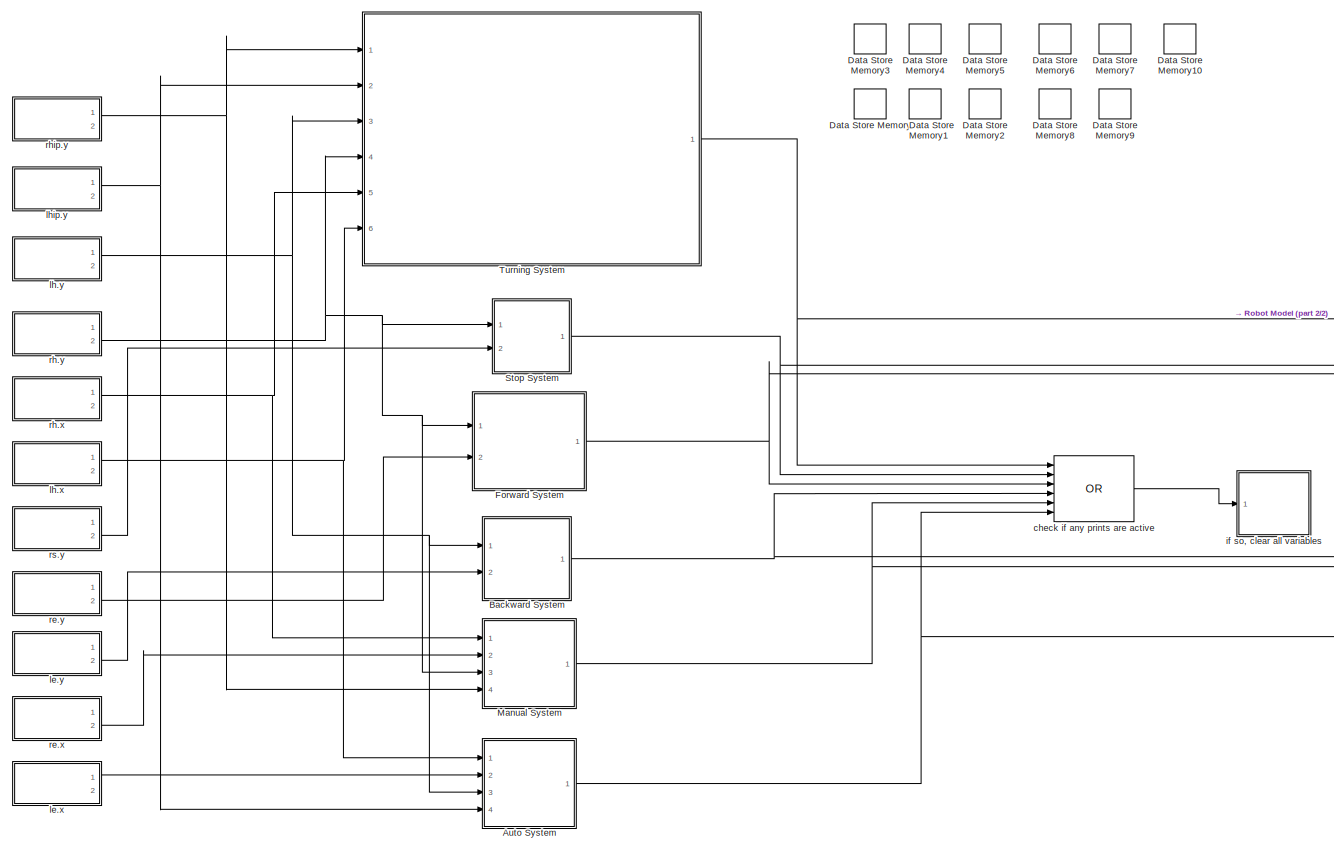
[diagram: root canvas - part 1/2, left side, full height]
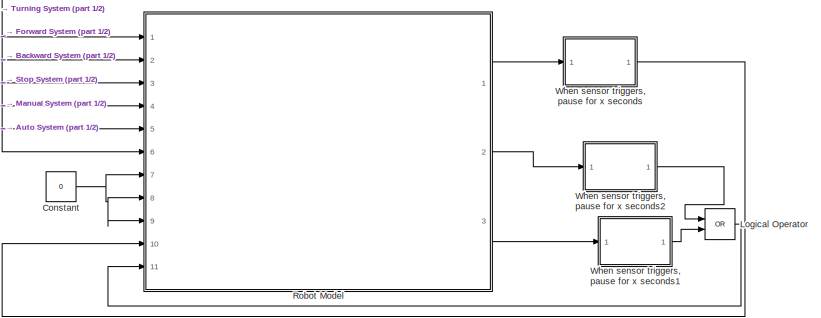
[diagram: root canvas - part 2/2, middle right region]
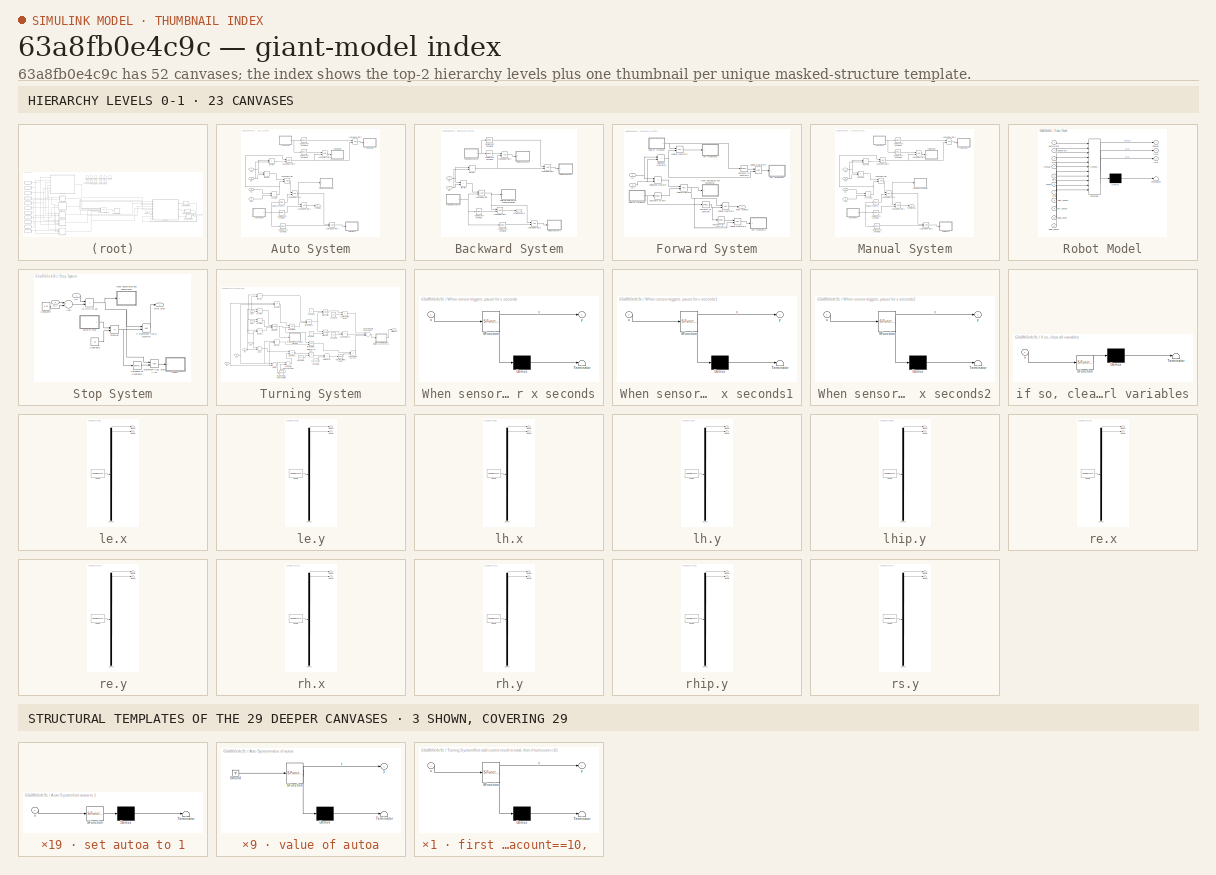
[diagram: thumbnail index - top-2 hierarchy levels (23 canvases) + 3 structural-template representatives of the remaining 29 canvases]
MODEL slx_63a8fb0e4c9c
KIND model
CONFIG AbsTol = auto
CONFIG FixedStep = auto
CONFIG MaxStep = auto
CONFIG MinStep = auto
CONFIG RelTol = 1e-3
CONFIG SampleTimeConstraint = Unconstrained
CONFIG Solver = VariableStepAuto
CONFIG SolverMode = Auto
CONFIG SolverName = VariableStepAuto
CONFIG StartTime = 0.0
CONFIG StopTime = 10.0
BLOCK [SubSystem] Auto System
  Ports = [4, 1]
  RequestExecContextInheritance = off
  Variant = off
BLOCK [Reference] Auto System/Compare To Constant  REF=simulink/Logic and Bit
Operations/Compare
To Constant
  Ports = [1, 1]
  SourceBlock = simulink/Logic and Bit\nOperations/Compare\nTo Constant
  SourceType = Compare To Constant
BLOCK [Reference] Auto System/Compare To Constant1  REF=simulink/Logic and Bit
Operations/Compare
To Constant
  Ports = [1, 1]
  SourceBlock = simulink/Logic and Bit\nOperations/Compare\nTo Constant
  SourceType = Compare To Constant
BLOCK [Reference] Auto System/Compare To Constant2  REF=simulink/Logic and Bit
Operations/Compare
To Constant
  Ports = [1, 1]
  SourceBlock = simulink/Logic and Bit\nOperations/Compare\nTo Constant
  SourceType = Compare To Constant
BLOCK [Reference] Auto System/Compare To Constant3  REF=simulink/Logic and Bit
Operations/Compare
To Constant
  Ports = [1, 1]
  SourceBlock = simulink/Logic and Bit\nOperations/Compare\nTo Constant
  SourceType = Compare To Constant
BLOCK [Reference] Auto System/Compare To Zero  REF=simulink/Logic and Bit
Operations/Compare
To Zero
  Ports = [1, 1]
  SourceBlock = simulink/Logic and Bit\nOperations/Compare\nTo Zero
  SourceType = Compare To Zero
BLOCK [Logic] Auto System/Logical Operator
  AllPortsSameDT = off
  OutDataTypeStr = boolean
  Ports = [2, 1]
BLOCK [Logic] Auto System/Logical Operator1
  AllPortsSameDT = off
  OutDataTypeStr = boolean
  Ports = [2, 1]
BLOCK [Logic] Auto System/Logical Operator2
  AllPortsSameDT = off
  OutDataTypeStr = boolean
  Ports = [2, 1]
BLOCK [Logic] Auto System/Logical Operator3
  AllPortsSameDT = off
  OutDataTypeStr = boolean
  Ports = [2, 1]
BLOCK [Logic] Auto System/Logical Operator4
  AllPortsSameDT = off
  OutDataTypeStr = boolean
  Ports = [2, 1]
BLOCK [Logic] Auto System/Logical Operator5
  AllPortsSameDT = off
  OutDataTypeStr = boolean
  Ports = [2, 1]
BLOCK [Logic] Auto System/Logical Operator6
  AllPortsSameDT = off
  OutDataTypeStr = boolean
  Ports = [2, 1]
BLOCK [Inport] Auto System/le.x
  IconDisplay = Port number
  Port = 2
BLOCK [Inport] Auto System/lh.x
  IconDisplay = Port number
BLOCK [RelationalOperator] Auto System/lh.x < le.x
  InputSameDT = off
  Operator = <
  OutDataTypeStr = boolean
  Ports = [2, 1]
BLOCK [RelationalOperator] Auto System/lh.x > le.x
  InputSameDT = off
  Operator = >
  OutDataTypeStr = boolean
  Ports = [2, 1]
BLOCK [Inport] Auto System/lh.y
  IconDisplay = Port number
  Port = 3
BLOCK [RelationalOperator] Auto System/lh.y > lhip.y
  InputSameDT = off
  Operator = >
  OutDataTypeStr = boolean
  Ports = [2, 1]
BLOCK [Inport] Auto System/lhip.y
  IconDisplay = Port number
  Port = 4
BLOCK [Outport] Auto System/print auto
  IconDisplay = Port number
BLOCK [SubSystem] Auto System/set autoa to 1
  ErrorFcn = Stateflow.Translate.translate
  PermitHierarchicalResolution = ExplicitOnly
  Ports = [1]
  RequestExecContextInheritance = off
  SFBlockType = MATLAB Function
  TreatAsAtomicUnit = on
  Variant = off
BLOCK [Demux] Auto System/set autoa to 1/ Demux 
  Outputs = 1
  Ports = [1, 1]
BLOCK [S-Function] Auto System/set autoa to 1/ SFunction 
  EnableBusSupport = on
  FunctionName = sf_sfun
  PortCounts = [1 1]
  Ports = [1, 1]
  SFunctionDeploymentMode = off
  Tag = Stateflow S-Function cps_4_11 21
BLOCK [Terminator] Auto System/set autoa to 1/ Terminator 
BLOCK [Inport] Auto System/set autoa to 1/u
  IconDisplay = Port number
BLOCK [SubSystem] Auto System/set autoa to 2
  ErrorFcn = Stateflow.Translate.translate
  PermitHierarchicalResolution = ExplicitOnly
  Ports = [1]
  RequestExecContextInheritance = off
  SFBlockType = MATLAB Function
  TreatAsAtomicUnit = on
  Variant = off
BLOCK [Demux] Auto System/set autoa to 2/ Demux 
  Outputs = 1
  Ports = [1, 1]
BLOCK [S-Function] Auto System/set autoa to 2/ SFunction 
  EnableBusSupport = on
  FunctionName = sf_sfun
  PortCounts = [1 1]
  Ports = [1, 1]
  SFunctionDeploymentMode = off
  Tag = Stateflow S-Function cps_4_11 20
BLOCK [Terminator] Auto System/set autoa to 2/ Terminator 
BLOCK [Inport] Auto System/set autoa to 2/u
  IconDisplay = Port number
BLOCK [SubSystem] Auto System/set autob=1
  ErrorFcn = Stateflow.Translate.translate
  PermitHierarchicalResolution = ExplicitOnly
  Ports = [1]
  RequestExecContextInheritance = off
  SFBlockType = MATLAB Function
  TreatAsAtomicUnit = on
  Variant = off
BLOCK [Demux] Auto System/set autob=1/ Demux 
  Outputs = 1
  Ports = [1, 1]
BLOCK [S-Function] Auto System/set autob=1/ SFunction 
  EnableBusSupport = on
  FunctionName = sf_sfun
  PortCounts = [1 1]
  Ports = [1, 1]
  SFunctionDeploymentMode = off
  Tag = Stateflow S-Function cps_4_11 17
BLOCK [Terminator] Auto System/set autob=1/ Terminator 
BLOCK [Inport] Auto System/set autob=1/u
  IconDisplay = Port number
BLOCK [SubSystem] Auto System/set mana and manb to 0
  ErrorFcn = Stateflow.Translate.translate
  PermitHierarchicalResolution = ExplicitOnly
  Ports = [1]
  RequestExecContextInheritance = off
  SFBlockType = MATLAB Function
  TreatAsAtomicUnit = on
  Variant = off
BLOCK [Demux] Auto System/set mana and manb to 0/ Demux 
  Outputs = 1
  Ports = [1, 1]
BLOCK [S-Function] Auto System/set mana and manb to 0/ SFunction 
  EnableBusSupport = on
  FunctionName = sf_sfun
  PortCounts = [1 1]
  Ports = [1, 1]
  SFunctionDeploymentMode = off
  Tag = Stateflow S-Function cps_4_11 18
BLOCK [Terminator] Auto System/set mana and manb to 0/ Terminator 
BLOCK [Inport] Auto System/set mana and manb to 0/u
  IconDisplay = Port number
BLOCK [SubSystem] Auto System/value of autoa
  ErrorFcn = Stateflow.Translate.translate
  PermitHierarchicalResolution = ExplicitOnly
  Ports = [0, 1]
  RequestExecContextInheritance = off
  SFBlockType = MATLAB Function
  TreatAsAtomicUnit = on
  Variant = off
BLOCK [Demux] Auto System/value of autoa/ Demux 
  Outputs = 1
  Ports = [1, 1]
BLOCK [Ground] Auto System/value of autoa/ Ground 
BLOCK [S-Function] Auto System/value of autoa/ SFunction 
  EnableBusSupport = on
  FunctionName = sf_sfun
  PortCounts = [1 2]
  Ports = [1, 2]
  SFunctionDeploymentMode = off
  Tag = Stateflow S-Function cps_4_11 16
BLOCK [Terminator] Auto System/value of autoa/ Terminator 
BLOCK [Outport] Auto System/value of autoa/y
  IconDisplay = Port number
BLOCK [SubSystem] Auto System/value of autob
  ErrorFcn = Stateflow.Translate.translate
  PermitHierarchicalResolution = ExplicitOnly
  Ports = [0, 1]
  RequestExecContextInheritance = off
  SFBlockType = MATLAB Function
  TreatAsAtomicUnit = on
  Variant = off
BLOCK [Demux] Auto System/value of autob/ Demux 
  Outputs = 1
  Ports = [1, 1]
BLOCK [Ground] Auto System/value of autob/ Ground 
BLOCK [S-Function] Auto System/value of autob/ SFunction 
  EnableBusSupport = on
  FunctionName = sf_sfun
  PortCounts = [1 2]
  Ports = [1, 2]
  SFunctionDeploymentMode = off
  Tag = Stateflow S-Function cps_4_11 19
BLOCK [Terminator] Auto System/value of autob/ Terminator 
BLOCK [Outport] Auto System/value of autob/y
  IconDisplay = Port number
BLOCK [SubSystem] Backward System
  Ports = [2, 1]
  RequestExecContextInheritance = off
  Variant = off
BLOCK [Reference] Backward System/Compare To Constant  REF=simulink/Logic and Bit
Operations/Compare
To Constant
  Ports = [1, 1]
  SourceBlock = simulink/Logic and Bit\nOperations/Compare\nTo Constant
  SourceType = Compare To Constant
BLOCK [Reference] Backward System/Compare To Constant1  REF=simulink/Logic and Bit
Operations/Compare
To Constant
  Ports = [1, 1]
  SourceBlock = simulink/Logic and Bit\nOperations/Compare\nTo Constant
  SourceType = Compare To Constant
BLOCK [Reference] Backward System/Compare To Constant2  REF=simulink/Logic and Bit
Operations/Compare
To Constant
  Ports = [1, 1]
  SourceBlock = simulink/Logic and Bit\nOperations/Compare\nTo Constant
  SourceType = Compare To Constant
BLOCK [Reference] Backward System/Compare To Constant3  REF=simulink/Logic and Bit
Operations/Compare
To Constant
  Ports = [1, 1]
  SourceBlock = simulink/Logic and Bit\nOperations/Compare\nTo Constant
  SourceType = Compare To Constant
BLOCK [Logic] Backward System/Logical Operator
  AllPortsSameDT = off
  OutDataTypeStr = boolean
  Ports = [2, 1]
BLOCK [Logic] Backward System/Logical Operator1
  AllPortsSameDT = off
  OutDataTypeStr = boolean
  Ports = [2, 1]
BLOCK [Logic] Backward System/Logical Operator2
  AllPortsSameDT = off
  OutDataTypeStr = boolean
  Ports = [2, 1]
BLOCK [Logic] Backward System/Logical Operator3
  AllPortsSameDT = off
  OutDataTypeStr = boolean
  Ports = [2, 1]
BLOCK [Logic] Backward System/Logical Operator4
  AllPortsSameDT = off
  OutDataTypeStr = boolean
  Ports = [2, 1]
BLOCK [RelationalOperator] Backward System/if lh.y<le.y
  InputSameDT = off
  Operator = <
  OutDataTypeStr = boolean
  Ports = [2, 1]
BLOCK [RelationalOperator] Backward System/if lh.y>le.y
  InputSameDT = off
  Operator = >
  OutDataTypeStr = boolean
  Ports = [2, 1]
BLOCK [Inport] Backward System/le.y
  IconDisplay = Port number
  Port = 2
BLOCK [Inport] Backward System/lh.y
  IconDisplay = Port number
BLOCK [Outport] Backward System/print backward
  IconDisplay = Port number
BLOCK [SubSystem] Backward System/set backwarda=1
  ErrorFcn = Stateflow.Translate.translate
  PermitHierarchicalResolution = ExplicitOnly
  Ports = [1]
  RequestExecContextInheritance = off
  SFBlockType = MATLAB Function
  TreatAsAtomicUnit = on
  Variant = off
BLOCK [Demux] Backward System/set backwarda=1/ Demux 
  Outputs = 1
  Ports = [1, 1]
BLOCK [S-Function] Backward System/set backwarda=1/ SFunction 
  EnableBusSupport = on
  FunctionName = sf_sfun
  PortCounts = [1 1]
  Ports = [1, 1]
  SFunctionDeploymentMode = off
  Tag = Stateflow S-Function cps_4_11 15
BLOCK [Terminator] Backward System/set backwarda=1/ Terminator 
BLOCK [Inport] Backward System/set backwarda=1/u
  IconDisplay = Port number
BLOCK [SubSystem] Backward System/set backwarda=2
  ErrorFcn = Stateflow.Translate.translate
  PermitHierarchicalResolution = ExplicitOnly
  Ports = [1]
  RequestExecContextInheritance = off
  SFBlockType = MATLAB Function
  TreatAsAtomicUnit = on
  Variant = off
BLOCK [Demux] Backward System/set backwarda=2/ Demux 
  Outputs = 1
  Ports = [1, 1]
BLOCK [S-Function] Backward System/set backwarda=2/ SFunction 
  EnableBusSupport = on
  FunctionName = sf_sfun
  PortCounts = [1 1]
  Ports = [1, 1]
  SFunctionDeploymentMode = off
  Tag = Stateflow S-Function cps_4_11 14
BLOCK [Terminator] Backward System/set backwarda=2/ Terminator 
BLOCK [Inport] Backward System/set backwarda=2/u
  IconDisplay = Port number
BLOCK [SubSystem] Backward System/set backwardb=1
  ErrorFcn = Stateflow.Translate.translate
  PermitHierarchicalResolution = ExplicitOnly
  Ports = [1]
  RequestExecContextInheritance = off
  SFBlockType = MATLAB Function
  TreatAsAtomicUnit = on
  Variant = off
BLOCK [Demux] Backward System/set backwardb=1/ Demux 
  Outputs = 1
  Ports = [1, 1]
BLOCK [S-Function] Backward System/set backwardb=1/ SFunction 
  EnableBusSupport = on
  FunctionName = sf_sfun
  PortCounts = [1 1]
  Ports = [1, 1]
  SFunctionDeploymentMode = off
  Tag = Stateflow S-Function cps_4_11 12
BLOCK [Terminator] Backward System/set backwardb=1/ Terminator 
BLOCK [Inport] Backward System/set backwardb=1/u
  IconDisplay = Port number
BLOCK [SubSystem] Backward System/set forwarda, forwardb, autoa, and autob to 0
  ErrorFcn = Stateflow.Translate.translate
  PermitHierarchicalResolution = ExplicitOnly
  Ports = [1]
  RequestExecContextInheritance = off
  SFBlockType = MATLAB Function
  TreatAsAtomicUnit = on
  Variant = off
BLOCK [Demux] Backward System/set forwarda, forwardb, autoa, and autob to 0/ Demux 
  Outputs = 1
  Ports = [1, 1]
BLOCK [S-Function] Backward System/set forwarda, forwardb, autoa, and autob to 0/ SFunction 
  EnableBusSupport = on
  FunctionName = sf_sfun
  PortCounts = [1 1]
  Ports = [1, 1]
  SFunctionDeploymentMode = off
  Tag = Stateflow S-Function cps_4_11 11
BLOCK [Terminator] Backward System/set forwarda, forwardb, autoa, and autob to 0/ Terminator 
BLOCK [Inport] Backward System/set forwarda, forwardb, autoa, and autob to 0/u
  IconDisplay = Port number
BLOCK [SubSystem] Backward System/value of backwarda
  ErrorFcn = Stateflow.Translate.translate
  PermitHierarchicalResolution = ExplicitOnly
  Ports = [0, 1]
  RequestExecContextInheritance = off
  SFBlockType = MATLAB Function
  TreatAsAtomicUnit = on
  Variant = off
BLOCK [Demux] Backward System/value of backwarda/ Demux 
  Outputs = 1
  Ports = [1, 1]
BLOCK [Ground] Backward System/value of backwarda/ Ground 
BLOCK [S-Function] Backward System/value of backwarda/ SFunction 
  EnableBusSupport = on
  FunctionName = sf_sfun
  PortCounts = [1 2]
  Ports = [1, 2]
  SFunctionDeploymentMode = off
  Tag = Stateflow S-Function cps_4_11 10
BLOCK [Terminator] Backward System/value of backwarda/ Terminator 
BLOCK [Outport] Backward System/value of backwarda/y
  IconDisplay = Port number
BLOCK [SubSystem] Backward System/value of backwardb
  ErrorFcn = Stateflow.Translate.translate
  PermitHierarchicalResolution = ExplicitOnly
  Ports = [0, 1]
  RequestExecContextInheritance = off
  SFBlockType = MATLAB Function
  TreatAsAtomicUnit = on
  Variant = off
BLOCK [Demux] Backward System/value of backwardb/ Demux 
  Outputs = 1
  Ports = [1, 1]
BLOCK [Ground] Backward System/value of backwardb/ Ground 
BLOCK [S-Function] Backward System/value of backwardb/ SFunction 
  EnableBusSupport = on
  FunctionName = sf_sfun
  PortCounts = [1 2]
  Ports = [1, 2]
  SFunctionDeploymentMode = off
  Tag = Stateflow S-Function cps_4_11 13
BLOCK [Terminator] Backward System/value of backwardb/ Terminator 
BLOCK [Outport] Backward System/value of backwardb/y
  IconDisplay = Port number
BLOCK [Constant] Constant
  Value = 0
BLOCK [DataStoreMemory] Data Store Memory
  DataStoreName = autob
  OutDataTypeStr = double
  ReadBeforeWriteMsg = warning
  ShowAdditionalParam = off
  SignalType = real
  WriteAfterReadMsg = warning
  WriteAfterWriteMsg = warning
BLOCK [DataStoreMemory] Data Store Memory1
  DataStoreName = mana
  OutDataTypeStr = double
  ReadBeforeWriteMsg = warning
  ShowAdditionalParam = off
  SignalType = real
  WriteAfterReadMsg = warning
  WriteAfterWriteMsg = warning
BLOCK [DataStoreMemory] Data Store Memory10
  DataStoreName = autoa
  OutDataTypeStr = double
  ReadBeforeWriteMsg = warning
  ShowAdditionalParam = off
  SignalType = real
  WriteAfterReadMsg = warning
  WriteAfterWriteMsg = warning
BLOCK [DataStoreMemory] Data Store Memory2
  DataStoreName = manb
  OutDataTypeStr = double
  ReadBeforeWriteMsg = warning
  ShowAdditionalParam = off
  SignalType = real
  WriteAfterReadMsg = warning
  WriteAfterWriteMsg = warning
BLOCK [DataStoreMemory] Data Store Memory3
  DataStoreName = stop
  OutDataTypeStr = double
  ReadBeforeWriteMsg = warning
  ShowAdditionalParam = off
  SignalType = real
  WriteAfterReadMsg = warning
  WriteAfterWriteMsg = warning
BLOCK [DataStoreMemory] Data Store Memory4
  DataStoreName = forwarda
  OutDataTypeStr = double
  ReadBeforeWriteMsg = warning
  ShowAdditionalParam = off
  SignalType = real
  WriteAfterReadMsg = warning
  WriteAfterWriteMsg = warning
BLOCK [DataStoreMemory] Data Store Memory5
  DataStoreName = forwardb
  OutDataTypeStr = double
  ReadBeforeWriteMsg = warning
  ShowAdditionalParam = off
  SignalType = real
  WriteAfterReadMsg = warning
  WriteAfterWriteMsg = warning
BLOCK [DataStoreMemory] Data Store Memory6
  DataStoreName = backwarda
  OutDataTypeStr = double
  ReadBeforeWriteMsg = warning
  ShowAdditionalParam = off
  SignalType = real
  WriteAfterReadMsg = warning
  WriteAfterWriteMsg = warning
BLOCK [DataStoreMemory] Data Store Memory7
  DataStoreName = backwardb
  OutDataTypeStr = double
  ReadBeforeWriteMsg = warning
  ShowAdditionalParam = off
  SignalType = real
  WriteAfterReadMsg = warning
  WriteAfterWriteMsg = warning
BLOCK [DataStoreMemory] Data Store Memory8
  DataStoreName = result
  OutDataTypeStr = double
  ReadBeforeWriteMsg = warning
  ShowAdditionalParam = off
  SignalType = real
  WriteAfterReadMsg = warning
  WriteAfterWriteMsg = warning
BLOCK [DataStoreMemory] Data Store Memory9
  DataStoreName = turncount
  OutDataTypeStr = double
  ReadBeforeWriteMsg = warning
  ShowAdditionalParam = off
  SignalType = real
  WriteAfterReadMsg = warning
  WriteAfterWriteMsg = warning
BLOCK [SubSystem] Forward System
  Ports = [2, 1]
  RequestExecContextInheritance = off
  Variant = off
BLOCK [Reference] Forward System/Compare To Constant  REF=simulink/Logic and Bit
Operations/Compare
To Constant
  Ports = [1, 1]
  SourceBlock = simulink/Logic and Bit\nOperations/Compare\nTo Constant
  SourceType = Compare To Constant
BLOCK [Reference] Forward System/Compare To Constant1  REF=simulink/Logic and Bit
Operations/Compare
To Constant
  Ports = [1, 1]
  SourceBlock = simulink/Logic and Bit\nOperations/Compare\nTo Constant
  SourceType = Compare To Constant
BLOCK [Reference] Forward System/Compare To Constant2  REF=simulink/Logic and Bit
Operations/Compare
To Constant
  Ports = [1, 1]
  SourceBlock = simulink/Logic and Bit\nOperations/Compare\nTo Constant
  SourceType = Compare To Constant
BLOCK [Reference] Forward System/Compare To Zero  REF=simulink/Logic and Bit
Operations/Compare
To Zero
  Ports = [1, 1]
  SourceBlock = simulink/Logic and Bit\nOperations/Compare\nTo Zero
  SourceType = Compare To Zero
BLOCK [Logic] Forward System/Logical Operator
  AllPortsSameDT = off
  OutDataTypeStr = boolean
  Ports = [2, 1]
BLOCK [Logic] Forward System/Logical Operator1
  AllPortsSameDT = off
  OutDataTypeStr = boolean
  Ports = [2, 1]
BLOCK [Logic] Forward System/Logical Operator2
  AllPortsSameDT = off
  OutDataTypeStr = boolean
  Ports = [2, 1]
BLOCK [Logic] Forward System/Logical Operator3
  AllPortsSameDT = off
  OutDataTypeStr = boolean
  Ports = [2, 1]
BLOCK [Logic] Forward System/Logical Operator4
  AllPortsSameDT = off
  OutDataTypeStr = boolean
  Ports = [2, 1]
BLOCK [RelationalOperator] Forward System/Relational Operator
  InputSameDT = off
  Operator = >
  OutDataTypeStr = boolean
  Ports = [2, 1]
BLOCK [RelationalOperator] Forward System/Relational Operator1
  InputSameDT = off
  Operator = <
  OutDataTypeStr = boolean
  Ports = [2, 1]
BLOCK [Outport] Forward System/print forward
  IconDisplay = Port number
BLOCK [Inport] Forward System/re.y
  IconDisplay = Port number
  Port = 2
BLOCK [SubSystem] Forward System/reset backwarda and backwardb
  ErrorFcn = Stateflow.Translate.translate
  PermitHierarchicalResolution = ExplicitOnly
  Ports = [1]
  RequestExecContextInheritance = off
  SFBlockType = MATLAB Function
  TreatAsAtomicUnit = on
  Variant = off
BLOCK [Demux] Forward System/reset backwarda and backwardb/ Demux 
  Outputs = 1
  Ports = [1, 1]
BLOCK [S-Function] Forward System/reset backwarda and backwardb/ SFunction 
  EnableBusSupport = on
  FunctionName = sf_sfun
  PortCounts = [1 1]
  Ports = [1, 1]
  SFunctionDeploymentMode = off
  Tag = Stateflow S-Function cps_4_11 4
BLOCK [Terminator] Forward System/reset backwarda and backwardb/ Terminator 
BLOCK [Inport] Forward System/reset backwarda and backwardb/u
  IconDisplay = Port number
BLOCK [Inport] Forward System/rh.y
  IconDisplay = Port number
BLOCK [SubSystem] Forward System/set forwarda=1
  ErrorFcn = Stateflow.Translate.translate
  PermitHierarchicalResolution = ExplicitOnly
  Ports = [1]
  RequestExecContextInheritance = off
  SFBlockType = MATLAB Function
  TreatAsAtomicUnit = on
  Variant = off
BLOCK [Demux] Forward System/set forwarda=1/ Demux 
  Outputs = 1
  Ports = [1, 1]
BLOCK [S-Function] Forward System/set forwarda=1/ SFunction 
  EnableBusSupport = on
  FunctionName = sf_sfun
  PortCounts = [1 1]
  Ports = [1, 1]
  SFunctionDeploymentMode = off
  Tag = Stateflow S-Function cps_4_11 9
BLOCK [Terminator] Forward System/set forwarda=1/ Terminator 
BLOCK [Inport] Forward System/set forwarda=1/u
  IconDisplay = Port number
BLOCK [SubSystem] Forward System/set forwarda=2
  ErrorFcn = Stateflow.Translate.translate
  PermitHierarchicalResolution = ExplicitOnly
  Ports = [1]
  RequestExecContextInheritance = off
  SFBlockType = MATLAB Function
  TreatAsAtomicUnit = on
  Variant = off
BLOCK [Demux] Forward System/set forwarda=2/ Demux 
  Outputs = 1
  Ports = [1, 1]
BLOCK [S-Function] Forward System/set forwarda=2/ SFunction 
  EnableBusSupport = on
  FunctionName = sf_sfun
  PortCounts = [1 1]
  Ports = [1, 1]
  SFunctionDeploymentMode = off
  Tag = Stateflow S-Function cps_4_11 8
BLOCK [Terminator] Forward System/set forwarda=2/ Terminator 
BLOCK [Inport] Forward System/set forwarda=2/u
  IconDisplay = Port number
BLOCK [SubSystem] Forward System/set forwardb=1
  ErrorFcn = Stateflow.Translate.translate
  PermitHierarchicalResolution = ExplicitOnly
  Ports = [1]
  RequestExecContextInheritance = off
  SFBlockType = MATLAB Function
  TreatAsAtomicUnit = on
  Variant = off
BLOCK [Demux] Forward System/set forwardb=1/ Demux 
  Outputs = 1
  Ports = [1, 1]
BLOCK [S-Function] Forward System/set forwardb=1/ SFunction 
  EnableBusSupport = on
  FunctionName = sf_sfun
  PortCounts = [1 1]
  Ports = [1, 1]
  SFunctionDeploymentMode = off
  Tag = Stateflow S-Function cps_4_11 5
BLOCK [Terminator] Forward System/set forwardb=1/ Terminator 
BLOCK [Inport] Forward System/set forwardb=1/u
  IconDisplay = Port number
BLOCK [SubSystem] Forward System/value of forwarda
  ErrorFcn = Stateflow.Translate.translate
  PermitHierarchicalResolution = ExplicitOnly
  Ports = [0, 1]
  RequestExecContextInheritance = off
  SFBlockType = MATLAB Function
  TreatAsAtomicUnit = on
  Variant = off
BLOCK [Demux] Forward System/value of forwarda/ Demux 
  Outputs = 1
  Ports = [1, 1]
BLOCK [Ground] Forward System/value of forwarda/ Ground 
BLOCK [S-Function] Forward System/value of forwarda/ SFunction 
  EnableBusSupport = on
  FunctionName = sf_sfun
  PortCounts = [1 2]
  Ports = [1, 2]
  SFunctionDeploymentMode = off
  Tag = Stateflow S-Function cps_4_11 3
BLOCK [Terminator] Forward System/value of forwarda/ Terminator 
BLOCK [Outport] Forward System/value of forwarda/y
  IconDisplay = Port number
BLOCK [SubSystem] Forward System/value of forwardb
  ErrorFcn = Stateflow.Translate.translate
  PermitHierarchicalResolution = ExplicitOnly
  Ports = [0, 1]
  RequestExecContextInheritance = off
  SFBlockType = MATLAB Function
  TreatAsAtomicUnit = on
  Variant = off
BLOCK [Demux] Forward System/value of forwardb/ Demux 
  Outputs = 1
  Ports = [1, 1]
BLOCK [Ground] Forward System/value of forwardb/ Ground 
BLOCK [S-Function] Forward System/value of forwardb/ SFunction 
  EnableBusSupport = on
  FunctionName = sf_sfun
  PortCounts = [1 2]
  Ports = [1, 2]
  SFunctionDeploymentMode = off
  Tag = Stateflow S-Function cps_4_11 7
BLOCK [Terminator] Forward System/value of forwardb/ Terminator 
BLOCK [Outport] Forward System/value of forwardb/y
  IconDisplay = Port number
BLOCK [Logic] Logical Operator
  AllPortsSameDT = off
  Operator = OR
  OutDataTypeStr = boolean
  Ports = [2, 1]
BLOCK [SubSystem] Manual System
  Ports = [4, 1]
  RequestExecContextInheritance = off
  Variant = off
BLOCK [Reference] Manual System/Compare To Constant  REF=simulink/Logic and Bit
Operations/Compare
To Constant
  Ports = [1, 1]
  SourceBlock = simulink/Logic and Bit\nOperations/Compare\nTo Constant
  SourceType = Compare To Constant
BLOCK [Reference] Manual System/Compare To Constant1  REF=simulink/Logic and Bit
Operations/Compare
To Constant
  Ports = [1, 1]
  SourceBlock = simulink/Logic and Bit\nOperations/Compare\nTo Constant
  SourceType = Compare To Constant
BLOCK [Reference] Manual System/Compare To Constant2  REF=simulink/Logic and Bit
Operations/Compare
To Constant
  Ports = [1, 1]
  SourceBlock = simulink/Logic and Bit\nOperations/Compare\nTo Constant
  SourceType = Compare To Constant
BLOCK [Reference] Manual System/Compare To Constant3  REF=simulink/Logic and Bit
Operations/Compare
To Constant
  Ports = [1, 1]
  SourceBlock = simulink/Logic and Bit\nOperations/Compare\nTo Constant
  SourceType = Compare To Constant
BLOCK [Reference] Manual System/Compare To Zero  REF=simulink/Logic and Bit
Operations/Compare
To Zero
  Ports = [1, 1]
  SourceBlock = simulink/Logic and Bit\nOperations/Compare\nTo Zero
  SourceType = Compare To Zero
BLOCK [Logic] Manual System/Logical Operator
  AllPortsSameDT = off
  OutDataTypeStr = boolean
  Ports = [2, 1]
BLOCK [Logic] Manual System/Logical Operator1
  AllPortsSameDT = off
  OutDataTypeStr = boolean
  Ports = [2, 1]
BLOCK [Logic] Manual System/Logical Operator2
  AllPortsSameDT = off
  OutDataTypeStr = boolean
  Ports = [2, 1]
BLOCK [Logic] Manual System/Logical Operator3
  AllPortsSameDT = off
  OutDataTypeStr = boolean
  Ports = [2, 1]
BLOCK [Logic] Manual System/Logical Operator4
  AllPortsSameDT = off
  OutDataTypeStr = boolean
  Ports = [2, 1]
BLOCK [Logic] Manual System/Logical Operator5
  AllPortsSameDT = off
  OutDataTypeStr = boolean
  Ports = [2, 1]
BLOCK [Logic] Manual System/Logical Operator6
  AllPortsSameDT = off
  OutDataTypeStr = boolean
  Ports = [2, 1]
BLOCK [Outport] Manual System/print manual
  IconDisplay = Port number
BLOCK [Inport] Manual System/re.x
  IconDisplay = Port number
  Port = 2
BLOCK [Inport] Manual System/rh.x
  IconDisplay = Port number
BLOCK [RelationalOperator] Manual System/rh.x < re.x
  InputSameDT = off
  Operator = <
  OutDataTypeStr = boolean
  Ports = [2, 1]
BLOCK [RelationalOperator] Manual System/rh.x > re.x
  InputSameDT = off
  Operator = >
  OutDataTypeStr = boolean
  Ports = [2, 1]
BLOCK [Inport] Manual System/rh.y
  IconDisplay = Port number
  Port = 3
BLOCK [RelationalOperator] Manual System/rh.y > rhip.y
  InputSameDT = off
  Operator = >
  OutDataTypeStr = boolean
  Ports = [2, 1]
BLOCK [Inport] Manual System/rhip.y
  IconDisplay = Port number
  Port = 4
BLOCK [SubSystem] Manual System/set autoa and autob to 0
  ErrorFcn = Stateflow.Translate.translate
  PermitHierarchicalResolution = ExplicitOnly
  Ports = [1]
  RequestExecContextInheritance = off
  SFBlockType = MATLAB Function
  TreatAsAtomicUnit = on
  Variant = off
BLOCK [Demux] Manual System/set autoa and autob to 0/ Demux 
  Outputs = 1
  Ports = [1, 1]
BLOCK [S-Function] Manual System/set autoa and autob to 0/ SFunction 
  EnableBusSupport = on
  FunctionName = sf_sfun
  PortCounts = [1 1]
  Ports = [1, 1]
  SFunctionDeploymentMode = off
  Tag = Stateflow S-Function cps_4_11 25
BLOCK [Terminator] Manual System/set autoa and autob to 0/ Terminator 
BLOCK [Inport] Manual System/set autoa and autob to 0/u
  IconDisplay = Port number
BLOCK [SubSystem] Manual System/set mana to 1
  ErrorFcn = Stateflow.Translate.translate
  PermitHierarchicalResolution = ExplicitOnly
  Ports = [1]
  RequestExecContextInheritance = off
  SFBlockType = MATLAB Function
  TreatAsAtomicUnit = on
  Variant = off
BLOCK [Demux] Manual System/set mana to 1/ Demux 
  Outputs = 1
  Ports = [1, 1]
BLOCK [S-Function] Manual System/set mana to 1/ SFunction 
  EnableBusSupport = on
  FunctionName = sf_sfun
  PortCounts = [1 1]
  Ports = [1, 1]
  SFunctionDeploymentMode = off
  Tag = Stateflow S-Function cps_4_11 22
BLOCK [Terminator] Manual System/set mana to 1/ Terminator 
BLOCK [Inport] Manual System/set mana to 1/u
  IconDisplay = Port number
BLOCK [SubSystem] Manual System/set mana to 2
  ErrorFcn = Stateflow.Translate.translate
  PermitHierarchicalResolution = ExplicitOnly
  Ports = [1]
  RequestExecContextInheritance = off
  SFBlockType = MATLAB Function
  TreatAsAtomicUnit = on
  Variant = off
BLOCK [Demux] Manual System/set mana to 2/ Demux 
  Outputs = 1
  Ports = [1, 1]
BLOCK [S-Function] Manual System/set mana to 2/ SFunction 
  EnableBusSupport = on
  FunctionName = sf_sfun
  PortCounts = [1 1]
  Ports = [1, 1]
  SFunctionDeploymentMode = off
  Tag = Stateflow S-Function cps_4_11 23
BLOCK [Terminator] Manual System/set mana to 2/ Terminator 
BLOCK [Inport] Manual System/set mana to 2/u
  IconDisplay = Port number
BLOCK [SubSystem] Manual System/set manb=1
  ErrorFcn = Stateflow.Translate.translate
  PermitHierarchicalResolution = ExplicitOnly
  Ports = [1]
  RequestExecContextInheritance = off
  SFBlockType = MATLAB Function
  TreatAsAtomicUnit = on
  Variant = off
BLOCK [Demux] Manual System/set manb=1/ Demux 
  Outputs = 1
  Ports = [1, 1]
BLOCK [S-Function] Manual System/set manb=1/ SFunction 
  EnableBusSupport = on
  FunctionName = sf_sfun
  PortCounts = [1 1]
  Ports = [1, 1]
  SFunctionDeploymentMode = off
  Tag = Stateflow S-Function cps_4_11 24
BLOCK [Terminator] Manual System/set manb=1/ Terminator 
BLOCK [Inport] Manual System/set manb=1/u
  IconDisplay = Port number
BLOCK [SubSystem] Manual System/value of mana
  ErrorFcn = Stateflow.Translate.translate
  PermitHierarchicalResolution = ExplicitOnly
  Ports = [0, 1]
  RequestExecContextInheritance = off
  SFBlockType = MATLAB Function
  TreatAsAtomicUnit = on
  Variant = off
BLOCK [Demux] Manual System/value of mana/ Demux 
  Outputs = 1
  Ports = [1, 1]
BLOCK [Ground] Manual System/value of mana/ Ground 
BLOCK [S-Function] Manual System/value of mana/ SFunction 
  EnableBusSupport = on
  FunctionName = sf_sfun
  PortCounts = [1 2]
  Ports = [1, 2]
  SFunctionDeploymentMode = off
  Tag = Stateflow S-Function cps_4_11 26
BLOCK [Terminator] Manual System/value of mana/ Terminator 
BLOCK [Outport] Manual System/value of mana/y
  IconDisplay = Port number
BLOCK [SubSystem] Manual System/value of manb
  ErrorFcn = Stateflow.Translate.translate
  PermitHierarchicalResolution = ExplicitOnly
  Ports = [0, 1]
  RequestExecContextInheritance = off
  SFBlockType = MATLAB Function
  TreatAsAtomicUnit = on
  Variant = off
BLOCK [Demux] Manual System/value of manb/ Demux 
  Outputs = 1
  Ports = [1, 1]
BLOCK [Ground] Manual System/value of manb/ Ground 
BLOCK [S-Function] Manual System/value of manb/ SFunction 
  EnableBusSupport = on
  FunctionName = sf_sfun
  PortCounts = [1 2]
  Ports = [1, 2]
  SFunctionDeploymentMode = off
  Tag = Stateflow S-Function cps_4_11 27
BLOCK [Terminator] Manual System/value of manb/ Terminator 
BLOCK [Outport] Manual System/value of manb/y
  IconDisplay = Port number
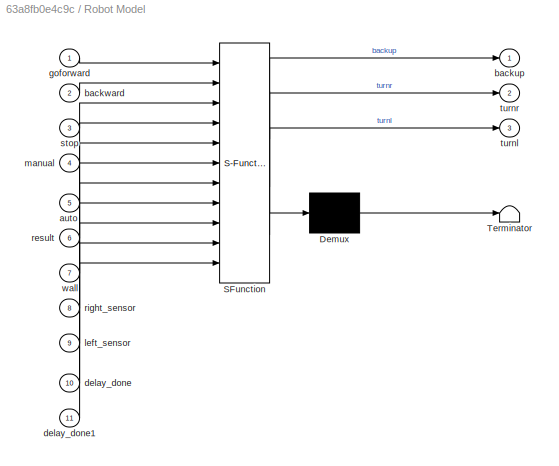
BLOCK [SubSystem] Robot Model
  ErrorFcn = Stateflow.Translate.translate
  PermitHierarchicalResolution = ExplicitOnly
  Ports = [11, 3]
  RequestExecContextInheritance = off
  SFBlockType = Chart
  TreatAsAtomicUnit = on
  Variant = off
BLOCK [Demux] Robot Model/ Demux 
  Outputs = 1
  Ports = [1, 1]
BLOCK [S-Function] Robot Model/ SFunction 
  EnableBusSupport = on
  FunctionName = sf_sfun
  PortCounts = [11 4]
  Ports = [11, 4]
  SFunctionDeploymentMode = off
  Tag = Stateflow S-Function cps_4_11 32
BLOCK [Terminator] Robot Model/ Terminator 
BLOCK [Inport] Robot Model/auto
  IconDisplay = Port number
  Port = 5
BLOCK [Outport] Robot Model/backup
  IconDisplay = Port number
BLOCK [Inport] Robot Model/backward
  IconDisplay = Port number
  Port = 2
BLOCK [Inport] Robot Model/delay_done
  IconDisplay = Port number
  Port = 10
BLOCK [Inport] Robot Model/delay_done1
  IconDisplay = Port number
  Port = 11
BLOCK [Inport] Robot Model/goforward
  IconDisplay = Port number
BLOCK [Inport] Robot Model/left_sensor
  IconDisplay = Port number
  Port = 9
BLOCK [Inport] Robot Model/manual
  IconDisplay = Port number
  Port = 4
BLOCK [Inport] Robot Model/result
  IconDisplay = Port number
  Port = 6
BLOCK [Inport] Robot Model/right_sensor
  IconDisplay = Port number
  Port = 8
BLOCK [Inport] Robot Model/stop
  IconDisplay = Port number
  Port = 3
BLOCK [Outport] Robot Model/turnl
  IconDisplay = Port number
  Port = 3
BLOCK [Outport] Robot Model/turnr
  IconDisplay = Port number
  Port = 2
BLOCK [Inport] Robot Model/wall
  IconDisplay = Port number
  Port = 7
BLOCK [SubSystem] Stop System
  Ports = [2, 1]
  RequestExecContextInheritance = off
  Variant = off
BLOCK [Sum] Stop System/Add
  InputSameDT = off
  OutDataTypeStr = Inherit: Inherit via internal rule
  Ports = [2, 1]
  SaturateOnIntegerOverflow = off
BLOCK [Reference] Stop System/Compare To Constant2  REF=simulink/Logic and Bit
Operations/Compare
To Constant
  Ports = [1, 1]
  SourceBlock = simulink/Logic and Bit\nOperations/Compare\nTo Constant
  SourceType = Compare To Constant
BLOCK [Constant] Stop System/Constant7
  Value = 0.15
BLOCK [Constant] Stop System/Constant8
  Value = 10
BLOCK [Logic] Stop System/if statement true & stop==10
  AllPortsSameDT = off
  OutDataTypeStr = boolean
  Ports = [2, 1]
BLOCK [Outport] Stop System/print stop
  IconDisplay = Port number
BLOCK [SubSystem] Stop System/reset backwarda and backwardb
  ErrorFcn = Stateflow.Translate.translate
  PermitHierarchicalResolution = ExplicitOnly
  Ports = [1]
  RequestExecContextInheritance = off
  SFBlockType = MATLAB Function
  TreatAsAtomicUnit = on
  Variant = off
BLOCK [Demux] Stop System/reset backwarda and backwardb/ Demux 
  Outputs = 1
  Ports = [1, 1]
BLOCK [S-Function] Stop System/reset backwarda and backwardb/ SFunction 
  EnableBusSupport = on
  FunctionName = sf_sfun
  PortCounts = [1 1]
  Ports = [1, 1]
  SFunctionDeploymentMode = off
  Tag = Stateflow S-Function cps_4_11 6
BLOCK [Terminator] Stop System/reset backwarda and backwardb/ Terminator 
BLOCK [Inport] Stop System/reset backwarda and backwardb/u
  IconDisplay = Port number
BLOCK [Inport] Stop System/rh.y
  IconDisplay = Port number
BLOCK [RelationalOperator] Stop System/rh.y>(rs.y+0.15)
  InputSameDT = off
  Operator = >
  OutDataTypeStr = boolean
  Ports = [2, 1]
BLOCK [Inport] Stop System/rs.y
  IconDisplay = Port number
  Port = 2
BLOCK [Logic] Stop System/statement true, stop != 10
  AllPortsSameDT = off
  OutDataTypeStr = boolean
  Ports = [2, 1]
BLOCK [SubSystem] Stop System/stop++
  ErrorFcn = Stateflow.Translate.translate
  PermitHierarchicalResolution = ExplicitOnly
  Ports = [1]
  RequestExecContextInheritance = off
  SFBlockType = MATLAB Function
  TreatAsAtomicUnit = on
  Variant = off
BLOCK [Demux] Stop System/stop++/ Demux 
  Outputs = 1
  Ports = [1, 1]
BLOCK [S-Function] Stop System/stop++/ SFunction 
  EnableBusSupport = on
  FunctionName = sf_sfun
  PortCounts = [1 1]
  Ports = [1, 1]
  SFunctionDeploymentMode = off
  Tag = Stateflow S-Function cps_4_11 2
BLOCK [Terminator] Stop System/stop++/ Terminator 
BLOCK [Inport] Stop System/stop++/u
  IconDisplay = Port number
BLOCK [RelationalOperator] Stop System/stop==10
  InputSameDT = off
  Operator = ==
  OutDataTypeStr = boolean
  Ports = [2, 1]
BLOCK [SubSystem] Stop System/value of stop
  ErrorFcn = Stateflow.Translate.translate
  PermitHierarchicalResolution = ExplicitOnly
  Ports = [0, 1]
  RequestExecContextInheritance = off
  SFBlockType = MATLAB Function
  TreatAsAtomicUnit = on
  Variant = off
BLOCK [Demux] Stop System/value of stop/ Demux 
  Outputs = 1
  Ports = [1, 1]
BLOCK [Ground] Stop System/value of stop/ Ground 
BLOCK [S-Function] Stop System/value of stop/ SFunction 
  EnableBusSupport = on
  FunctionName = sf_sfun
  PortCounts = [1 2]
  Ports = [1, 2]
  SFunctionDeploymentMode = off
  Tag = Stateflow S-Function cps_4_11 1
BLOCK [Terminator] Stop System/value of stop/ Terminator 
BLOCK [Outport] Stop System/value of stop/y
  IconDisplay = Port number
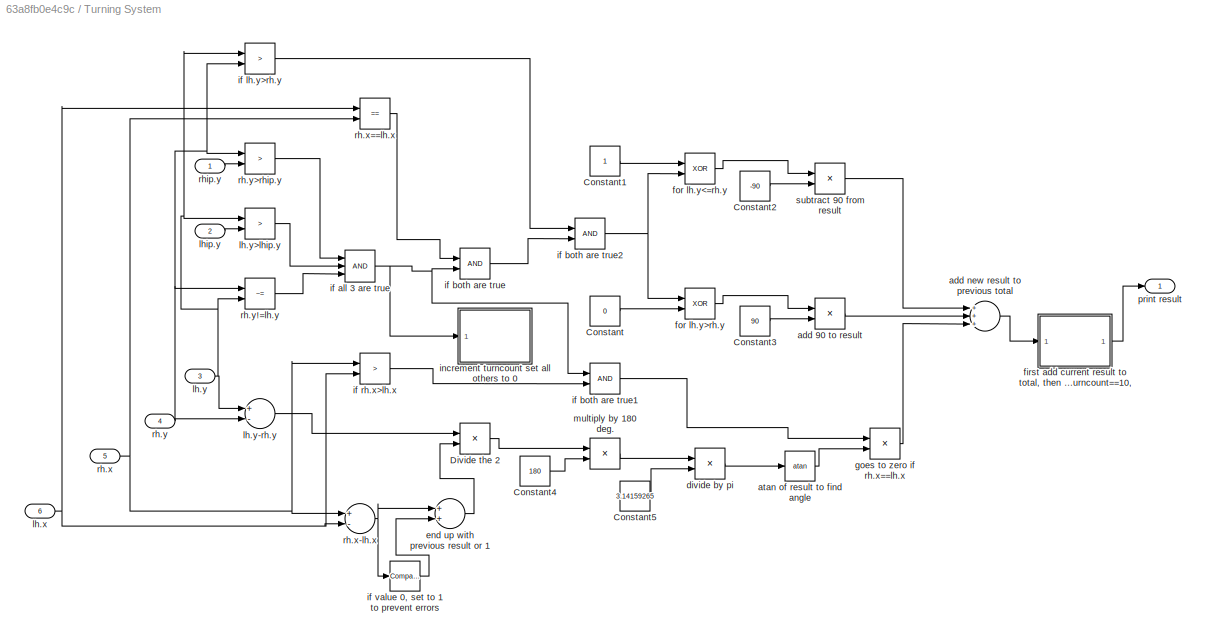
BLOCK [SubSystem] Turning System
  Ports = [6, 1]
  RequestExecContextInheritance = off
  Variant = off
BLOCK [Constant] Turning System/Constant
  Value = 0
BLOCK [Constant] Turning System/Constant1
BLOCK [Constant] Turning System/Constant2
  Value = -90
BLOCK [Constant] Turning System/Constant3
  Value = 90
BLOCK [Constant] Turning System/Constant4
  Value = 180
BLOCK [Constant] Turning System/Constant5
  Value = 3.14159265
BLOCK [Product] Turning System/Divide the 2
  InputSameDT = off
  Inputs = */
  OutDataTypeStr = Inherit: Inherit via internal rule
  Ports = [2, 1]
  RndMeth = Floor
  SaturateOnIntegerOverflow = off
BLOCK [Product] Turning System/add 90 to result
  InputSameDT = off
  OutDataTypeStr = Inherit: Inherit via internal rule
  Ports = [2, 1]
  RndMeth = Floor
  SaturateOnIntegerOverflow = off
BLOCK [Sum] Turning System/add new result to previous total
  InputSameDT = off
  Inputs = +++
  OutDataTypeStr = Inherit: Inherit via internal rule
  Ports = [3, 1]
  SaturateOnIntegerOverflow = off
BLOCK [Trigonometry] Turning System/atan of result to find angle
  Operator = atan
  Ports = [1, 1]
BLOCK [Product] Turning System/divide by pi
  InputSameDT = off
  Inputs = */
  OutDataTypeStr = Inherit: Inherit via internal rule
  Ports = [2, 1]
  RndMeth = Floor
  SaturateOnIntegerOverflow = off
BLOCK [Sum] Turning System/end up with previous result or 1
  InputSameDT = off
  OutDataTypeStr = Inherit: Inherit via internal rule
  Ports = [2, 1]
  SaturateOnIntegerOverflow = off
BLOCK [SubSystem] Turning System/first add current result to total, then if turncount==10, 
  ErrorFcn = Stateflow.Translate.translate
  PermitHierarchicalResolution = ExplicitOnly
  Ports = [1, 1]
  RequestExecContextInheritance = off
  SFBlockType = MATLAB Function
  TreatAsAtomicUnit = on
  Variant = off
BLOCK [Demux] Turning System/first add current result to total, then if turncount==10, / Demux 
  Outputs = 1
  Ports = [1, 1]
BLOCK [S-Function] Turning System/first add current result to total, then if turncount==10, / SFunction 
  EnableBusSupport = on
  FunctionName = sf_sfun
  PortCounts = [1 2]
  Ports = [1, 2]
  SFunctionDeploymentMode = off
  Tag = Stateflow S-Function cps_4_11 29
BLOCK [Terminator] Turning System/first add current result to total, then if turncount==10, / Terminator 
BLOCK [Inport] Turning System/first add current result to total, then if turncount==10, /u
  IconDisplay = Port number
BLOCK [Outport] Turning System/first add current result to total, then if turncount==10, /y
  IconDisplay = Port number
BLOCK [Logic] Turning System/for lh.y<=rh.y
  AllPortsSameDT = off
  Operator = XOR
  OutDataTypeStr = boolean
  Ports = [2, 1]
BLOCK [Logic] Turning System/for lh.y>rh.y
  AllPortsSameDT = off
  Operator = XOR
  OutDataTypeStr = boolean
  Ports = [2, 1]
BLOCK [Product] Turning System/goes to zero if rh.x==lh.x
  InputSameDT = off
  OutDataTypeStr = Inherit: Inherit via internal rule
  Ports = [2, 1]
  RndMeth = Floor
  SaturateOnIntegerOverflow = off
BLOCK [Logic] Turning System/if all 3 are true
  AllPortsSameDT = off
  Inputs = 3
  OutDataTypeStr = boolean
  Ports = [3, 1]
BLOCK [Logic] Turning System/if both are true
  AllPortsSameDT = off
  OutDataTypeStr = boolean
  Ports = [2, 1]
BLOCK [Logic] Turning System/if both are true1
  AllPortsSameDT = off
  OutDataTypeStr = boolean
  Ports = [2, 1]
BLOCK [Logic] Turning System/if both are true2
  AllPortsSameDT = off
  OutDataTypeStr = boolean
  Ports = [2, 1]
BLOCK [RelationalOperator] Turning System/if lh.y>rh.y
  InputSameDT = off
  Operator = >
  OutDataTypeStr = boolean
  Ports = [2, 1]
BLOCK [RelationalOperator] Turning System/if rh.x>lh.x
  InputSameDT = off
  Operator = >
  OutDataTypeStr = boolean
  Ports = [2, 1]
BLOCK [Reference] Turning System/if value 0, set to 1 to prevent errors  REF=simulink/Logic and Bit
Operations/Compare
To Zero
  Ports = [1, 1]
  SourceBlock = simulink/Logic and Bit\nOperations/Compare\nTo Zero
  SourceType = Compare To Zero
BLOCK [SubSystem] Turning System/increment turncount set all others to 0
  ErrorFcn = Stateflow.Translate.translate
  PermitHierarchicalResolution = ExplicitOnly
  Ports = [1]
  RequestExecContextInheritance = off
  SFBlockType = MATLAB Function
  TreatAsAtomicUnit = on
  Variant = off
BLOCK [Demux] Turning System/increment turncount set all others to 0/ Demux 
  Outputs = 1
  Ports = [1, 1]
BLOCK [S-Function] Turning System/increment turncount set all others to 0/ SFunction 
  EnableBusSupport = on
  FunctionName = sf_sfun
  PortCounts = [1 1]
  Ports = [1, 1]
  SFunctionDeploymentMode = off
  Tag = Stateflow S-Function cps_4_11 28
BLOCK [Terminator] Turning System/increment turncount set all others to 0/ Terminator 
BLOCK [Inport] Turning System/increment turncount set all others to 0/u
  IconDisplay = Port number
BLOCK [Inport] Turning System/lh.x
  IconDisplay = Port number
  Port = 6
BLOCK [Inport] Turning System/lh.y
  IconDisplay = Port number
  Port = 3
BLOCK [Sum] Turning System/lh.y-rh.y
  InputSameDT = off
  Inputs = +-
  OutDataTypeStr = Inherit: Inherit via internal rule
  Ports = [2, 1]
  SaturateOnIntegerOverflow = off
BLOCK [RelationalOperator] Turning System/lh.y>lhip.y
  InputSameDT = off
  Operator = >
  OutDataTypeStr = boolean
  Ports = [2, 1]
BLOCK [Inport] Turning System/lhip.y
  IconDisplay = Port number
  Port = 2
BLOCK [Product] Turning System/multiply by 180 deg.
  InputSameDT = off
  OutDataTypeStr = Inherit: Inherit via internal rule
  Ports = [2, 1]
  RndMeth = Floor
  SaturateOnIntegerOverflow = off
BLOCK [Outport] Turning System/print result
  IconDisplay = Port number
BLOCK [Inport] Turning System/rh.x
  IconDisplay = Port number
  Port = 5
BLOCK [Sum] Turning System/rh.x-lh.x
  InputSameDT = off
  Inputs = +-
  OutDataTypeStr = Inherit: Inherit via internal rule
  Ports = [2, 1]
  SaturateOnIntegerOverflow = off
BLOCK [RelationalOperator] Turning System/rh.x==lh.x
  InputSameDT = off
  Operator = ==
  OutDataTypeStr = boolean
  Ports = [2, 1]
BLOCK [Inport] Turning System/rh.y
  IconDisplay = Port number
  Port = 4
BLOCK [RelationalOperator] Turning System/rh.y!=lh.y
  InputSameDT = off
  Operator = ~=
  OutDataTypeStr = boolean
  Ports = [2, 1]
BLOCK [RelationalOperator] Turning System/rh.y>rhip.y
  InputSameDT = off
  Operator = >
  OutDataTypeStr = boolean
  Ports = [2, 1]
BLOCK [Inport] Turning System/rhip.y
  IconDisplay = Port number
BLOCK [Product] Turning System/subtract 90 from result
  InputSameDT = off
  OutDataTypeStr = Inherit: Inherit via internal rule
  Ports = [2, 1]
  RndMeth = Floor
  SaturateOnIntegerOverflow = off
BLOCK [SubSystem] When sensor triggers, pause for x seconds
  ErrorFcn = Stateflow.Translate.translate
  PermitHierarchicalResolution = ExplicitOnly
  Ports = [1, 1]
  RequestExecContextInheritance = off
  SFBlockType = MATLAB Function
  TreatAsAtomicUnit = on
  Variant = off
BLOCK [Demux] When sensor triggers, pause for x seconds/ Demux 
  Outputs = 1
  Ports = [1, 1]
BLOCK [S-Function] When sensor triggers, pause for x seconds/ SFunction 
  EnableBusSupport = on
  FunctionName = sf_sfun
  PortCounts = [1 2]
  Ports = [1, 2]
  SFunctionDeploymentMode = off
  Tag = Stateflow S-Function cps_4_11 31
BLOCK [Terminator] When sensor triggers, pause for x seconds/ Terminator 
BLOCK [Inport] When sensor triggers, pause for x seconds/u
  IconDisplay = Port number
BLOCK [Outport] When sensor triggers, pause for x seconds/y
  IconDisplay = Port number
BLOCK [SubSystem] When sensor triggers, pause for x seconds1
  ErrorFcn = Stateflow.Translate.translate
  PermitHierarchicalResolution = ExplicitOnly
  Ports = [1, 1]
  RequestExecContextInheritance = off
  SFBlockType = MATLAB Function
  TreatAsAtomicUnit = on
  Variant = off
BLOCK [Demux] When sensor triggers, pause for x seconds1/ Demux 
  Outputs = 1
  Ports = [1, 1]
BLOCK [S-Function] When sensor triggers, pause for x seconds1/ SFunction 
  EnableBusSupport = on
  FunctionName = sf_sfun
  PortCounts = [1 2]
  Ports = [1, 2]
  SFunctionDeploymentMode = off
  Tag = Stateflow S-Function cps_4_11 38
BLOCK [Terminator] When sensor triggers, pause for x seconds1/ Terminator 
BLOCK [Inport] When sensor triggers, pause for x seconds1/u
  IconDisplay = Port number
BLOCK [Outport] When sensor triggers, pause for x seconds1/y
  IconDisplay = Port number
BLOCK [SubSystem] When sensor triggers, pause for x seconds2
  ErrorFcn = Stateflow.Translate.translate
  PermitHierarchicalResolution = ExplicitOnly
  Ports = [1, 1]
  RequestExecContextInheritance = off
  SFBlockType = MATLAB Function
  TreatAsAtomicUnit = on
  Variant = off
BLOCK [Demux] When sensor triggers, pause for x seconds2/ Demux 
  Outputs = 1
  Ports = [1, 1]
BLOCK [S-Function] When sensor triggers, pause for x seconds2/ SFunction 
  EnableBusSupport = on
  FunctionName = sf_sfun
  PortCounts = [1 2]
  Ports = [1, 2]
  SFunctionDeploymentMode = off
  Tag = Stateflow S-Function cps_4_11 33
BLOCK [Terminator] When sensor triggers, pause for x seconds2/ Terminator 
BLOCK [Inport] When sensor triggers, pause for x seconds2/u
  IconDisplay = Port number
BLOCK [Outport] When sensor triggers, pause for x seconds2/y
  IconDisplay = Port number
BLOCK [Logic] check if any prints are active
  AllPortsSameDT = off
  Inputs = 6
  Operator = OR
  OutDataTypeStr = boolean
  Ports = [6, 1]
BLOCK [SubSystem] if so, clear all variables
  ErrorFcn = Stateflow.Translate.translate
  PermitHierarchicalResolution = ExplicitOnly
  Ports = [1]
  RequestExecContextInheritance = off
  SFBlockType = MATLAB Function
  TreatAsAtomicUnit = on
  Variant = off
BLOCK [Demux] if so, clear all variables/ Demux 
  Outputs = 1
  Ports = [1, 1]
BLOCK [S-Function] if so, clear all variables/ SFunction 
  EnableBusSupport = on
  FunctionName = sf_sfun
  PortCounts = [1 1]
  Ports = [1, 1]
  SFunctionDeploymentMode = off
  Tag = Stateflow S-Function cps_4_11 30
BLOCK [Terminator] if so, clear all variables/ Terminator 
BLOCK [Inport] if so, clear all variables/u
  IconDisplay = Port number
BLOCK [SubSystem] le.x
  ClipboardFcn = sigbuilder_block('clipboard');
  CloseFcn = sigbuilder_block('close');
  ContinueFcn = sigbuilder_block('continue');
  CopyFcn = sigbuilder_block('copy');
  DeleteFcn = sigbuilder_block('delete');
  LoadFcn = sigbuilder_block('load');
  MaskHideContents = on
  ModelCloseFcn = sigbuilder_block('modelClose');
  NameChangeFcn = sigbuilder_block('namechange');
  OpenFcn = sigbuilder_block('open',[358 196 550 400 ]);
  PauseFcn = sigbuilder_block('pause');
  Ports = [0, 2]
  PreSaveFcn = sigbuilder_block('preSave');
  RequestExecContextInheritance = off
  StartFcn = sigbuilder_block('start');
  StopFcn = sigbuilder_block('stop');
  Tag = STV Subsys
  Variant = off
BLOCK [Demux] le.x/Demux
  Outputs = 2
  Ports = [1, 2]
  Tag = STV Demux
BLOCK [FromWorkspace] le.x/FromWs
  SampleTime = 0
  Tag = STV FromWs
  VariableName = tuvar
  ZeroCross = on
BLOCK [Outport] le.x/Signal 1
  IconDisplay = Port number
  Tag = STV Outport
BLOCK [Outport] le.x/Signal 2
  IconDisplay = Port number
  Port = 2
  Tag = STV Outport
BLOCK [SubSystem] le.y
  ClipboardFcn = sigbuilder_block('clipboard');
  CloseFcn = sigbuilder_block('close');
  ContinueFcn = sigbuilder_block('continue');
  CopyFcn = sigbuilder_block('copy');
  DeleteFcn = sigbuilder_block('delete');
  LoadFcn = sigbuilder_block('load');
  MaskHideContents = on
  ModelCloseFcn = sigbuilder_block('modelClose');
  NameChangeFcn = sigbuilder_block('namechange');
  OpenFcn = sigbuilder_block('open',[358 196 550 400 ]);
  PauseFcn = sigbuilder_block('pause');
  Ports = [0, 2]
  PreSaveFcn = sigbuilder_block('preSave');
  RequestExecContextInheritance = off
  StartFcn = sigbuilder_block('start');
  StopFcn = sigbuilder_block('stop');
  Tag = STV Subsys
  Variant = off
BLOCK [Demux] le.y/Demux
  Outputs = 2
  Ports = [1, 2]
  Tag = STV Demux
BLOCK [FromWorkspace] le.y/FromWs
  SampleTime = 0
  Tag = STV FromWs
  VariableName = tuvar
  ZeroCross = on
BLOCK [Outport] le.y/Signal 1
  IconDisplay = Port number
  Tag = STV Outport
BLOCK [Outport] le.y/Signal 2
  IconDisplay = Port number
  Port = 2
  Tag = STV Outport
BLOCK [SubSystem] lh.x
  ClipboardFcn = sigbuilder_block('clipboard');
  CloseFcn = sigbuilder_block('close');
  ContinueFcn = sigbuilder_block('continue');
  CopyFcn = sigbuilder_block('copy');
  DeleteFcn = sigbuilder_block('delete');
  LoadFcn = sigbuilder_block('load');
  MaskHideContents = on
  ModelCloseFcn = sigbuilder_block('modelClose');
  NameChangeFcn = sigbuilder_block('namechange');
  OpenFcn = sigbuilder_block('open',[358 196 550 400 ]);
  PauseFcn = sigbuilder_block('pause');
  Ports = [0, 2]
  PreSaveFcn = sigbuilder_block('preSave');
  RequestExecContextInheritance = off
  StartFcn = sigbuilder_block('start');
  StopFcn = sigbuilder_block('stop');
  Tag = STV Subsys
  Variant = off
BLOCK [Demux] lh.x/Demux
  Outputs = 2
  Ports = [1, 2]
  Tag = STV Demux
BLOCK [FromWorkspace] lh.x/FromWs
  SampleTime = 0
  Tag = STV FromWs
  VariableName = tuvar
  ZeroCross = on
BLOCK [Outport] lh.x/Signal 1
  IconDisplay = Port number
  Tag = STV Outport
BLOCK [Outport] lh.x/Signal 2
  IconDisplay = Port number
  Port = 2
  Tag = STV Outport
BLOCK [SubSystem] lh.y
  ClipboardFcn = sigbuilder_block('clipboard');
  CloseFcn = sigbuilder_block('close');
  ContinueFcn = sigbuilder_block('continue');
  CopyFcn = sigbuilder_block('copy');
  DeleteFcn = sigbuilder_block('delete');
  LoadFcn = sigbuilder_block('load');
  MaskHideContents = on
  ModelCloseFcn = sigbuilder_block('modelClose');
  NameChangeFcn = sigbuilder_block('namechange');
  OpenFcn = sigbuilder_block('open',[358 196 550 400 ]);
  PauseFcn = sigbuilder_block('pause');
  Ports = [0, 2]
  PreSaveFcn = sigbuilder_block('preSave');
  RequestExecContextInheritance = off
  StartFcn = sigbuilder_block('start');
  StopFcn = sigbuilder_block('stop');
  Tag = STV Subsys
  Variant = off
BLOCK [Demux] lh.y/Demux
  Outputs = 2
  Ports = [1, 2]
  Tag = STV Demux
BLOCK [FromWorkspace] lh.y/FromWs
  SampleTime = 0
  Tag = STV FromWs
  VariableName = tuvar
  ZeroCross = on
BLOCK [Outport] lh.y/Signal 1
  IconDisplay = Port number
  Tag = STV Outport
BLOCK [Outport] lh.y/Signal 2
  IconDisplay = Port number
  Port = 2
  Tag = STV Outport
BLOCK [SubSystem] lhip.y
  ClipboardFcn = sigbuilder_block('clipboard');
  CloseFcn = sigbuilder_block('close');
  ContinueFcn = sigbuilder_block('continue');
  CopyFcn = sigbuilder_block('copy');
  DeleteFcn = sigbuilder_block('delete');
  LoadFcn = sigbuilder_block('load');
  MaskHideContents = on
  ModelCloseFcn = sigbuilder_block('modelClose');
  NameChangeFcn = sigbuilder_block('namechange');
  OpenFcn = sigbuilder_block('open',[358 196 550 400 ]);
  PauseFcn = sigbuilder_block('pause');
  Ports = [0, 2]
  PreSaveFcn = sigbuilder_block('preSave');
  RequestExecContextInheritance = off
  StartFcn = sigbuilder_block('start');
  StopFcn = sigbuilder_block('stop');
  Tag = STV Subsys
  Variant = off
BLOCK [Demux] lhip.y/Demux
  Outputs = 2
  Ports = [1, 2]
  Tag = STV Demux
BLOCK [FromWorkspace] lhip.y/FromWs
  SampleTime = 0
  Tag = STV FromWs
  VariableName = tuvar
  ZeroCross = on
BLOCK [Outport] lhip.y/Signal 1
  IconDisplay = Port number
  Tag = STV Outport
BLOCK [Outport] lhip.y/Signal 2
  IconDisplay = Port number
  Port = 2
  Tag = STV Outport
BLOCK [SubSystem] re.x
  ClipboardFcn = sigbuilder_block('clipboard');
  CloseFcn = sigbuilder_block('close');
  ContinueFcn = sigbuilder_block('continue');
  CopyFcn = sigbuilder_block('copy');
  DeleteFcn = sigbuilder_block('delete');
  LoadFcn = sigbuilder_block('load');
  MaskHideContents = on
  ModelCloseFcn = sigbuilder_block('modelClose');
  NameChangeFcn = sigbuilder_block('namechange');
  OpenFcn = sigbuilder_block('open',[358 196 550 400 ]);
  PauseFcn = sigbuilder_block('pause');
  Ports = [0, 2]
  PreSaveFcn = sigbuilder_block('preSave');
  RequestExecContextInheritance = off
  StartFcn = sigbuilder_block('start');
  StopFcn = sigbuilder_block('stop');
  Tag = STV Subsys
  Variant = off
BLOCK [Demux] re.x/Demux
  Outputs = 2
  Ports = [1, 2]
  Tag = STV Demux
BLOCK [FromWorkspace] re.x/FromWs
  SampleTime = 0
  Tag = STV FromWs
  VariableName = tuvar
  ZeroCross = on
BLOCK [Outport] re.x/Signal 1
  IconDisplay = Port number
  Tag = STV Outport
BLOCK [Outport] re.x/Signal 2
  IconDisplay = Port number
  Port = 2
  Tag = STV Outport
BLOCK [SubSystem] re.y
  ClipboardFcn = sigbuilder_block('clipboard');
  CloseFcn = sigbuilder_block('close');
  ContinueFcn = sigbuilder_block('continue');
  CopyFcn = sigbuilder_block('copy');
  DeleteFcn = sigbuilder_block('delete');
  LoadFcn = sigbuilder_block('load');
  MaskHideContents = on
  ModelCloseFcn = sigbuilder_block('modelClose');
  NameChangeFcn = sigbuilder_block('namechange');
  OpenFcn = sigbuilder_block('open',[358 196 550 400 ]);
  PauseFcn = sigbuilder_block('pause');
  Ports = [0, 2]
  PreSaveFcn = sigbuilder_block('preSave');
  RequestExecContextInheritance = off
  StartFcn = sigbuilder_block('start');
  StopFcn = sigbuilder_block('stop');
  Tag = STV Subsys
  Variant = off
BLOCK [Demux] re.y/Demux
  Outputs = 2
  Ports = [1, 2]
  Tag = STV Demux
BLOCK [FromWorkspace] re.y/FromWs
  SampleTime = 0
  Tag = STV FromWs
  VariableName = tuvar
  ZeroCross = on
BLOCK [Outport] re.y/Signal 1
  IconDisplay = Port number
  Tag = STV Outport
BLOCK [Outport] re.y/Signal 2
  IconDisplay = Port number
  Port = 2
  Tag = STV Outport
BLOCK [SubSystem] rh.x
  ClipboardFcn = sigbuilder_block('clipboard');
  CloseFcn = sigbuilder_block('close');
  ContinueFcn = sigbuilder_block('continue');
  CopyFcn = sigbuilder_block('copy');
  DeleteFcn = sigbuilder_block('delete');
  LoadFcn = sigbuilder_block('load');
  MaskHideContents = on
  ModelCloseFcn = sigbuilder_block('modelClose');
  NameChangeFcn = sigbuilder_block('namechange');
  OpenFcn = sigbuilder_block('open',[358 196 550 400 ]);
  PauseFcn = sigbuilder_block('pause');
  Ports = [0, 2]
  PreSaveFcn = sigbuilder_block('preSave');
  RequestExecContextInheritance = off
  StartFcn = sigbuilder_block('start');
  StopFcn = sigbuilder_block('stop');
  Tag = STV Subsys
  Variant = off
BLOCK [Demux] rh.x/Demux
  Outputs = 2
  Ports = [1, 2]
  Tag = STV Demux
BLOCK [FromWorkspace] rh.x/FromWs
  SampleTime = 0
  Tag = STV FromWs
  VariableName = tuvar
  ZeroCross = on
BLOCK [Outport] rh.x/Signal 1
  IconDisplay = Port number
  Tag = STV Outport
BLOCK [Outport] rh.x/Signal 2
  IconDisplay = Port number
  Port = 2
  Tag = STV Outport
BLOCK [SubSystem] rh.y
  ClipboardFcn = sigbuilder_block('clipboard');
  CloseFcn = sigbuilder_block('close');
  ContinueFcn = sigbuilder_block('continue');
  CopyFcn = sigbuilder_block('copy');
  DeleteFcn = sigbuilder_block('delete');
  LoadFcn = sigbuilder_block('load');
  MaskHideContents = on
  ModelCloseFcn = sigbuilder_block('modelClose');
  NameChangeFcn = sigbuilder_block('namechange');
  OpenFcn = sigbuilder_block('open',[358 196 550 400 ]);
  PauseFcn = sigbuilder_block('pause');
  Ports = [0, 2]
  PreSaveFcn = sigbuilder_block('preSave');
  RequestExecContextInheritance = off
  StartFcn = sigbuilder_block('start');
  StopFcn = sigbuilder_block('stop');
  Tag = STV Subsys
  Variant = off
BLOCK [Demux] rh.y/Demux
  Outputs = 2
  Ports = [1, 2]
  Tag = STV Demux
BLOCK [FromWorkspace] rh.y/FromWs
  SampleTime = 0
  Tag = STV FromWs
  VariableName = tuvar
  ZeroCross = on
BLOCK [Outport] rh.y/Signal 1
  IconDisplay = Port number
  Tag = STV Outport
BLOCK [Outport] rh.y/Signal 2
  IconDisplay = Port number
  Port = 2
  Tag = STV Outport
BLOCK [SubSystem] rhip.y
  ClipboardFcn = sigbuilder_block('clipboard');
  CloseFcn = sigbuilder_block('close');
  ContinueFcn = sigbuilder_block('continue');
  CopyFcn = sigbuilder_block('copy');
  DeleteFcn = sigbuilder_block('delete');
  LoadFcn = sigbuilder_block('load');
  MaskHideContents = on
  ModelCloseFcn = sigbuilder_block('modelClose');
  NameChangeFcn = sigbuilder_block('namechange');
  OpenFcn = sigbuilder_block('open',[358 196 550 400 ]);
  PauseFcn = sigbuilder_block('pause');
  Ports = [0, 2]
  PreSaveFcn = sigbuilder_block('preSave');
  RequestExecContextInheritance = off
  StartFcn = sigbuilder_block('start');
  StopFcn = sigbuilder_block('stop');
  Tag = STV Subsys
  Variant = off
BLOCK [Demux] rhip.y/Demux
  Outputs = 2
  Ports = [1, 2]
  Tag = STV Demux
BLOCK [FromWorkspace] rhip.y/FromWs
  SampleTime = 0
  Tag = STV FromWs
  VariableName = tuvar
  ZeroCross = on
BLOCK [Outport] rhip.y/Signal 1
  IconDisplay = Port number
  Tag = STV Outport
BLOCK [Outport] rhip.y/Signal 2
  IconDisplay = Port number
  Port = 2
  Tag = STV Outport
BLOCK [SubSystem] rs.y
  ClipboardFcn = sigbuilder_block('clipboard');
  CloseFcn = sigbuilder_block('close');
  ContinueFcn = sigbuilder_block('continue');
  CopyFcn = sigbuilder_block('copy');
  DeleteFcn = sigbuilder_block('delete');
  LoadFcn = sigbuilder_block('load');
  MaskHideContents = on
  ModelCloseFcn = sigbuilder_block('modelClose');
  NameChangeFcn = sigbuilder_block('namechange');
  OpenFcn = sigbuilder_block('open',[358 196 550 400 ]);
  PauseFcn = sigbuilder_block('pause');
  Ports = [0, 2]
  PreSaveFcn = sigbuilder_block('preSave');
  RequestExecContextInheritance = off
  StartFcn = sigbuilder_block('start');
  StopFcn = sigbuilder_block('stop');
  Tag = STV Subsys
  Variant = off
BLOCK [Demux] rs.y/Demux
  Outputs = 2
  Ports = [1, 2]
  Tag = STV Demux
BLOCK [FromWorkspace] rs.y/FromWs
  SampleTime = 0
  Tag = STV FromWs
  VariableName = tuvar
  ZeroCross = on
BLOCK [Outport] rs.y/Signal 1
  IconDisplay = Port number
  Tag = STV Outport
BLOCK [Outport] rs.y/Signal 2
  IconDisplay = Port number
  Port = 2
  Tag = STV Outport
LINE Auto System/Compare To Constant1:1 -> Auto System/Logical Operator2:2
LINE Auto System/Compare To Constant2:1 -> Auto System/Logical Operator6:1
LINE Auto System/Compare To Constant3:1 -> Auto System/Logical Operator5:1
LINE Auto System/Compare To Constant:1 -> Auto System/Logical Operator1:2
LINE Auto System/Compare To Zero:1 -> Auto System/Logical Operator3:2
LINE Auto System/Logical Operator1:1 -> Auto System/print auto:1
LINE Auto System/Logical Operator2:1 -> Auto System/set autob=1:1
NET Auto System/Logical Operator3:1 -> Auto System/Logical Operator1:1, Auto System/Logical Operator2:1, Auto System/set mana and manb to 0:1
NET Auto System/Logical Operator4:1 -> Auto System/Logical Operator5:2, Auto System/Logical Operator6:2
LINE Auto System/Logical Operator5:1 -> Auto System/set autoa to 2:1
LINE Auto System/Logical Operator6:1 -> Auto System/set autoa to 1:1
LINE Auto System/Logical Operator:1 -> Auto System/Logical Operator3:1
NET Auto System/le.x:1 -> Auto System/lh.x < le.x:2, Auto System/lh.x > le.x:2
LINE Auto System/lh.x < le.x:1 -> Auto System/Logical Operator4:2
LINE Auto System/lh.x > le.x:1 -> Auto System/Logical Operator:1
NET Auto System/lh.x:1 -> Auto System/lh.x < le.x:1, Auto System/lh.x > le.x:1
NET Auto System/lh.y > lhip.y:1 -> Auto System/Logical Operator4:1, Auto System/Logical Operator:2
LINE Auto System/lh.y:1 -> Auto System/lh.y > lhip.y:1
LINE Auto System/lhip.y:1 -> Auto System/lh.y > lhip.y:2
NET Auto System/value of autoa:1 -> Auto System/Compare To Constant1:1, Auto System/Compare To Constant:1, Auto System/Compare To Zero:1
NET Auto System/value of autob:1 -> Auto System/Compare To Constant2:1, Auto System/Compare To Constant3:1
NET Auto System:1 -> Robot Model:5, check if any prints are active:6
LINE Backward System/Compare To Constant1:1 -> Backward System/Logical Operator2:2
LINE Backward System/Compare To Constant2:1 -> Backward System/Logical Operator3:1
LINE Backward System/Compare To Constant3:1 -> Backward System/Logical Operator4:1
LINE Backward System/Compare To Constant:1 -> Backward System/Logical Operator1:2
LINE Backward System/Logical Operator1:1 -> Backward System/print backward:1
LINE Backward System/Logical Operator2:1 -> Backward System/set backwardb=1:1
LINE Backward System/Logical Operator3:1 -> Backward System/set backwarda=2:1
LINE Backward System/Logical Operator4:1 -> Backward System/set backwarda=1:1
NET Backward System/Logical Operator:1 -> Backward System/Logical Operator1:1, Backward System/Logical Operator2:1, Backward System/set forwarda, forwardb, autoa, and autob to 0:1
LINE Backward System/if lh.y<le.y:1 -> Backward System/Logical Operator:1
NET Backward System/if lh.y>le.y:1 -> Backward System/Logical Operator3:2, Backward System/Logical Operator4:2
NET Backward System/le.y:1 -> Backward System/if lh.y<le.y:2, Backward System/if lh.y>le.y:2
NET Backward System/lh.y:1 -> Backward System/if lh.y<le.y:1, Backward System/if lh.y>le.y:1
NET Backward System/value of backwarda:1 -> Backward System/Compare To Constant1:1, Backward System/Compare To Constant:1, Backward System/Logical Operator:2
NET Backward System/value of backwardb:1 -> Backward System/Compare To Constant2:1, Backward System/Compare To Constant3:1
NET Backward System:1 -> Robot Model:2, check if any prints are active:4
NET Constant:1 -> Robot Model:7, Robot Model:8, Robot Model:9
LINE Forward System/Compare To Constant1:1 -> Forward System/Logical Operator4:1
LINE Forward System/Compare To Constant2:1 -> Forward System/Logical Operator2:1
NET Forward System/Compare To Constant:1 -> Forward System/Compare To Constant2:1, Forward System/Logical Operator1:2
LINE Forward System/Compare To Zero:1 -> Forward System/Logical Operator:2
LINE Forward System/Logical Operator1:1 -> Forward System/print forward:1
LINE Forward System/Logical Operator2:1 -> Forward System/set forwardb=1:1
LINE Forward System/Logical Operator3:1 -> Forward System/set forwarda=2:1
LINE Forward System/Logical Operator4:1 -> Forward System/set forwarda=1:1
NET Forward System/Logical Operator:1 -> Forward System/Logical Operator1:1, Forward System/Logical Operator2:2, Forward System/reset backwarda and backwardb:1
NET Forward System/Relational Operator1:1 -> Forward System/Logical Operator3:2, Forward System/Logical Operator4:2
LINE Forward System/Relational Operator:1 -> Forward System/Logical Operator:1
NET Forward System/re.y:1 -> Forward System/Relational Operator1:2, Forward System/Relational Operator:2
NET Forward System/rh.y:1 -> Forward System/Relational Operator1:1, Forward System/Relational Operator:1
NET Forward System/value of forwarda:1 -> Forward System/Compare To Constant:1, Forward System/Compare To Zero:1
NET Forward System/value of forwardb:1 -> Forward System/Compare To Constant1:1, Forward System/Logical Operator3:1
NET Forward System:1 -> Robot Model:1, check if any prints are active:3
LINE Logical Operator:1 -> Robot Model:11
LINE Manual System/Compare To Constant1:1 -> Manual System/Logical Operator2:2
LINE Manual System/Compare To Constant2:1 -> Manual System/Logical Operator6:1
LINE Manual System/Compare To Constant3:1 -> Manual System/Logical Operator5:1
LINE Manual System/Compare To Constant:1 -> Manual System/Logical Operator1:2
LINE Manual System/Compare To Zero:1 -> Manual System/Logical Operator3:2
LINE Manual System/Logical Operator1:1 -> Manual System/print manual:1
LINE Manual System/Logical Operator2:1 -> Manual System/set manb=1:1
NET Manual System/Logical Operator3:1 -> Manual System/Logical Operator1:1, Manual System/Logical Operator2:1, Manual System/set autoa and autob to 0:1
NET Manual System/Logical Operator4:1 -> Manual System/Logical Operator5:2, Manual System/Logical Operator6:2
LINE Manual System/Logical Operator5:1 -> Manual System/set mana to 2:1
LINE Manual System/Logical Operator6:1 -> Manual System/set mana to 1:1
LINE Manual System/Logical Operator:1 -> Manual System/Logical Operator3:1
NET Manual System/re.x:1 -> Manual System/rh.x < re.x:2, Manual System/rh.x > re.x:2
LINE Manual System/rh.x < re.x:1 -> Manual System/Logical Operator:1
LINE Manual System/rh.x > re.x:1 -> Manual System/Logical Operator4:2
NET Manual System/rh.x:1 -> Manual System/rh.x < re.x:1, Manual System/rh.x > re.x:1
NET Manual System/rh.y > rhip.y:1 -> Manual System/Logical Operator4:1, Manual System/Logical Operator:2
LINE Manual System/rh.y:1 -> Manual System/rh.y > rhip.y:1
LINE Manual System/rhip.y:1 -> Manual System/rh.y > rhip.y:2
NET Manual System/value of mana:1 -> Manual System/Compare To Constant1:1, Manual System/Compare To Constant:1, Manual System/Compare To Zero:1
NET Manual System/value of manb:1 -> Manual System/Compare To Constant2:1, Manual System/Compare To Constant3:1
NET Manual System:1 -> Robot Model:4, check if any prints are active:5
LINE Robot Model:1 -> When sensor triggers, pause for x seconds:1
LINE Robot Model:2 -> When sensor triggers, pause for x seconds2:1
LINE Robot Model:3 -> When sensor triggers, pause for x seconds1:1
LINE Stop System/Add:1 -> Stop System/rh.y>(rs.y+0.15):2
LINE Stop System/Compare To Constant2:1 -> Stop System/statement true, stop != 10:2
LINE Stop System/Constant7:1 -> Stop System/Add:2
LINE Stop System/Constant8:1 -> Stop System/stop==10:2
LINE Stop System/if statement true & stop==10:1 -> Stop System/print stop:1
LINE Stop System/rh.y:1 -> Stop System/rh.y>(rs.y+0.15):1
NET Stop System/rh.y>(rs.y+0.15):1 -> Stop System/if statement true & stop==10:1, Stop System/reset backwarda and backwardb:1, Stop System/statement true, stop != 10:1
LINE Stop System/rs.y:1 -> Stop System/Add:1
LINE Stop System/statement true, stop != 10:1 -> Stop System/stop++:1
NET Stop System/stop==10:1 -> Stop System/Compare To Constant2:1, Stop System/if statement true & stop==10:2
LINE Stop System/value of stop:1 -> Stop System/stop==10:1
NET Stop System:1 -> Robot Model:3, check if any prints are active:2
LINE Turning System/Constant1:1 -> Turning System/for lh.y<=rh.y:1
LINE Turning System/Constant2:1 -> Turning System/subtract 90 from result:2
LINE Turning System/Constant3:1 -> Turning System/add 90 to result:2
LINE Turning System/Constant4:1 -> Turning System/multiply by 180 deg.:2
LINE Turning System/Constant5:1 -> Turning System/divide by pi:2
LINE Turning System/Constant:1 -> Turning System/for lh.y>rh.y:2
LINE Turning System/Divide the 2:1 -> Turning System/multiply by 180 deg.:1
LINE Turning System/add 90 to result:1 -> Turning System/add new result to previous total:2
LINE Turning System/add new result to previous total:1 -> Turning System/first add current result to total, then if turncount==10, :1
LINE Turning System/atan of result to find angle:1 -> Turning System/goes to zero if rh.x==lh.x:2
LINE Turning System/divide by pi:1 -> Turning System/atan of result to find angle:1
LINE Turning System/end up with previous result or 1:1 -> Turning System/Divide the 2:2
LINE Turning System/first add current result to total, then if turncount==10, :1 -> Turning System/print result:1
LINE Turning System/for lh.y<=rh.y:1 -> Turning System/subtract 90 from result:1
LINE Turning System/for lh.y>rh.y:1 -> Turning System/add 90 to result:1
LINE Turning System/goes to zero if rh.x==lh.x:1 -> Turning System/add new result to previous total:3
NET Turning System/if all 3 are true:1 -> Turning System/if both are true1:1, Turning System/if both are true:2, Turning System/increment turncount set all others to 0:1
LINE Turning System/if both are true1:1 -> Turning System/goes to zero if rh.x==lh.x:1
NET Turning System/if both are true2:1 -> Turning System/for lh.y<=rh.y:2, Turning System/for lh.y>rh.y:1
LINE Turning System/if both are true:1 -> Turning System/if both are true2:2
LINE Turning System/if lh.y>rh.y:1 -> Turning System/if both are true2:1
LINE Turning System/if rh.x>lh.x:1 -> Turning System/if both are true1:2
LINE Turning System/if value 0, set to 1 to prevent errors:1 -> Turning System/end up with previous result or 1:2
NET Turning System/lh.x:1 -> Turning System/if rh.x>lh.x:2, Turning System/rh.x-lh.x:2, Turning System/rh.x==lh.x:1
LINE Turning System/lh.y-rh.y:1 -> Turning System/Divide the 2:1
NET Turning System/lh.y:1 -> Turning System/if lh.y>rh.y:1, Turning System/lh.y-rh.y:1, Turning System/lh.y>lhip.y:1, Turning System/rh.y!=lh.y:2
LINE Turning System/lh.y>lhip.y:1 -> Turning System/if all 3 are true:2
LINE Turning System/lhip.y:1 -> Turning System/lh.y>lhip.y:2
LINE Turning System/multiply by 180 deg.:1 -> Turning System/divide by pi:1
NET Turning System/rh.x-lh.x:1 -> Turning System/end up with previous result or 1:1, Turning System/if value 0, set to 1 to prevent errors:1
NET Turning System/rh.x:1 -> Turning System/if rh.x>lh.x:1, Turning System/rh.x-lh.x:1, Turning System/rh.x==lh.x:2
LINE Turning System/rh.x==lh.x:1 -> Turning System/if both are true:1
LINE Turning System/rh.y!=lh.y:1 -> Turning System/if all 3 are true:3
NET Turning System/rh.y:1 -> Turning System/if lh.y>rh.y:2, Turning System/lh.y-rh.y:2, Turning System/rh.y!=lh.y:1, Turning System/rh.y>rhip.y:1
LINE Turning System/rh.y>rhip.y:1 -> Turning System/if all 3 are true:1
LINE Turning System/rhip.y:1 -> Turning System/rh.y>rhip.y:2
LINE Turning System/subtract 90 from result:1 -> Turning System/add new result to previous total:1
NET Turning System:1 -> Robot Model:6, check if any prints are active:1
LINE When sensor triggers, pause for x seconds1:1 -> Logical Operator:2
LINE When sensor triggers, pause for x seconds2:1 -> Logical Operator:1
LINE When sensor triggers, pause for x seconds:1 -> Robot Model:10
LINE check if any prints are active:1 -> if so, clear all variables:1
LINE le.x:2 -> Auto System:2
LINE le.y:2 -> Backward System:2
NET lh.x:2 -> Auto System:1, Turning System:6
NET lh.y:2 -> Auto System:3, Backward System:1, Turning System:3
NET lhip.y:2 -> Auto System:4, Turning System:2
LINE re.x:2 -> Manual System:2
LINE re.y:2 -> Forward System:2
NET rh.x:2 -> Manual System:1, Turning System:5
NET rh.y:2 -> Forward System:1, Manual System:3, Stop System:1, Turning System:4
NET rhip.y:2 -> Manual System:4, Turning System:1
LINE rs.y:2 -> Stop System:2
note: NET lines group one-source signal fan-out (src -> all destinations, sorted); 1:1 wires keep LINE
CHART Stop System/value of stop states=1 transitions=1
  STATE_LABEL 'eML_blk_kernel()'
  STATE_LABEL 'SCRIPT:\nfunction y = fcn\n%#codegen\nglobal stop;\ny=stop;'
CHART Stop System/stop++ states=1 transitions=1
  STATE_LABEL 'eML_blk_kernel()'
  STATE_LABEL 'SCRIPT:\nfunction fcn(u)\n%#codegen\nglobal stop;\nstop=stop+u;\n'
CHART Forward System/value of forwarda states=1 transitions=1
  STATE_LABEL 'eML_blk_kernel()'
  STATE_LABEL 'SCRIPT:\nfunction y = fcn\n%#codegen\nglobal forwarda;\ny = forwarda;'
CHART Forward System/reset backwarda and backwardb states=1 transitions=1
  STATE_LABEL 'eML_blk_kernel()'
  STATE_LABEL 'SCRIPT:\nfunction fcn(u)\n%#codegen\nglobal backwarda;\nglobal backwardb;\nif (u==1)\n    backwarda=0;\n    backwardb=0;\nend\n    \n        '
CHART Forward System/set forwardb=1 states=1 transitions=1
  STATE_LABEL 'eML_blk_kernel()'
  STATE_LABEL 'SCRIPT:\nfunction fcn(u)\n%#codegen\nglobal forwardb;\nif u==1\n    forwardb=1;\nend'
CHART Stop System/reset backwarda and backwardb states=1 transitions=1
  STATE_LABEL 'eML_blk_kernel()'
  STATE_LABEL 'SCRIPT:\nfunction fcn(u)\n%#codegen\nglobal backwarda;\nglobal backwardb;\nif (u==1)\n    backwarda=0;\n    backwardb=0;\nend\n    \n        '
CHART Forward System/value of forwardb states=1 transitions=1
  STATE_LABEL 'eML_blk_kernel()'
  STATE_LABEL 'SCRIPT:\nfunction y = fcn\n%#codegen\nglobal forwardb;\ny = forwardb;'
CHART Forward System/set forwarda=2 states=1 transitions=1
  STATE_LABEL 'eML_blk_kernel()'
  STATE_LABEL 'SCRIPT:\nfunction fcn(u)\n%#codegen\nglobal forwarda;\nif u==1\n    forwarda=2;\nend'
CHART Forward System/set forwarda=1 states=1 transitions=1
  STATE_LABEL 'eML_blk_kernel()'
  STATE_LABEL 'SCRIPT:\nfunction fcn(u)\n%#codegen\nglobal forwarda;\nif u==1\n    forwarda=1;\nend'
CHART Backward System/value of backwarda states=1 transitions=1
  STATE_LABEL 'eML_blk_kernel()'
  STATE_LABEL 'SCRIPT:\nfunction y = fcn\n%#codegen\nglobal backwarda;\ny = backwarda;'
CHART Backward System/set forwarda, forwardb,
autoa, and autob to 0 states=1 transitions=1
  STATE_LABEL 'eML_blk_kernel()'
  STATE_LABEL 'SCRIPT:\nfunction fcn(u)\n%#codegen\nglobal forwarda;\nglobal forwardb;\nglobal autoa;\nglobal autob;\nif u==1\n    forwarda=0;\n    forwardb=0;\n    autoa=0;\n    autob=0;\nend\n'
CHART Backward System/set backwardb=1 states=1 transitions=1
  STATE_LABEL 'eML_blk_kernel()'
  STATE_LABEL 'SCRIPT:\nfunction fcn(u)\n%#codegen\nglobal backwardb;\nif u==1\n    backwardb=1;\nend'
CHART Backward System/value of backwardb states=1 transitions=1
  STATE_LABEL 'eML_blk_kernel()'
  STATE_LABEL 'SCRIPT:\nfunction y = fcn\n%#codegen\nglobal backwardb;\ny=backwardb;'
CHART Backward System/set backwarda=2 states=1 transitions=1
  STATE_LABEL 'eML_blk_kernel()'
  STATE_LABEL 'SCRIPT:\nfunction fcn(u)\n%#codegen\nglobal backwarda;\nif u==1\n    backwarda=2;\nend'
CHART Backward System/set backwarda=1 states=1 transitions=1
  STATE_LABEL 'eML_blk_kernel()'
  STATE_LABEL 'SCRIPT:\nfunction fcn(u)\n%#codegen\nglobal backwarda;\nif u==1\n    backwarda=1;\nend'
CHART Auto System/value of autoa states=1 transitions=1
  STATE_LABEL 'eML_blk_kernel()'
  STATE_LABEL 'SCRIPT:\nfunction y = fcn\n%#codegen\nglobal autoa;\ny=autoa;'
CHART Auto System/set autob=1 states=1 transitions=1
  STATE_LABEL 'eML_blk_kernel()'
  STATE_LABEL 'SCRIPT:\nfunction fcn(u)\n%#codegen\nglobal autob;\nif u==1\n    autob=1;\nend'
CHART Auto System/set mana and manb to 0 states=1 transitions=1
  STATE_LABEL 'eML_blk_kernel()'
  STATE_LABEL 'SCRIPT:\nfunction fcn(u)\n%#codegen\nglobal mana;\nglobal manb;\nif u==1\n    mana=0;\n    manb=0;\nend'
CHART Auto System/value of autob states=1 transitions=1
  STATE_LABEL 'eML_blk_kernel()'
  STATE_LABEL 'SCRIPT:\nfunction y = fcn\n%#codegen\nglobal autob;\ny = autob;'
CHART Auto System/set autoa to 2 states=1 transitions=1
  STATE_LABEL 'eML_blk_kernel()'
  STATE_LABEL 'SCRIPT:\nfunction fcn(u)\n%#codegen\nglobal autoa;\nif u==1\n    autoa=2;\nend\n'
CHART Auto System/set autoa to 1 states=1 transitions=1
  STATE_LABEL 'eML_blk_kernel()'
  STATE_LABEL 'SCRIPT:\nfunction fcn(u)\n%#codegen\nglobal autoa\nif u==1\n    autoa=1;\nend'
CHART Manual System/set mana to 1 states=1 transitions=1
  STATE_LABEL 'eML_blk_kernel()'
  STATE_LABEL 'SCRIPT:\nfunction fcn(u)\n%#codegen\nglobal mana\nif u==1\n    mana=1;\nend'
CHART Manual System/set mana to 2 states=1 transitions=1
  STATE_LABEL 'eML_blk_kernel()'
  STATE_LABEL 'SCRIPT:\nfunction fcn(u)\n%#codegen\nglobal mana;\nif u==1\n    mana=2;\nend\n'
CHART Manual System/set manb=1 states=1 transitions=1
  STATE_LABEL 'eML_blk_kernel()'
  STATE_LABEL 'SCRIPT:\nfunction fcn(u)\n%#codegen\nglobal manb;\nif u==1\n    manb=1;\nend'
CHART Manual System/set autoa and autob to 0 states=1 transitions=1
  STATE_LABEL 'eML_blk_kernel()'
  STATE_LABEL 'SCRIPT:\nfunction fcn(u)\n%#codegen\nglobal autoa;\nglobal autob;\nif u==1\n    autoa=0;\n    autob=0;\nend'
CHART Manual System/value of mana states=1 transitions=1
  STATE_LABEL 'eML_blk_kernel()'
  STATE_LABEL 'SCRIPT:\nfunction y = fcn\n%#codegen\nglobal mana;\ny=mana;'
CHART Manual System/value of manb states=1 transitions=1
  STATE_LABEL 'eML_blk_kernel()'
  STATE_LABEL 'SCRIPT:\nfunction y = fcn\n%#codegen\nglobal manb;\ny = manb;'
CHART Turning System/increment turncount
set all others to 0 states=1 transitions=1
  STATE_LABEL 'eML_blk_kernel()'
  STATE_LABEL 'SCRIPT:\nfunction fcn(u)\n%#codegen\nglobal backwarda;\nglobal backwardb;\nglobal forwarda;\nglobal forwardb;\nglobal autoa;\nglobal autob;\nglobal mana;\nglobal manb;\nglobal stop;\nglobal turncount;\nif u==1\n    backwarda=0;\n    backwardb=0;\n    forwarda=0;\n    forwardb=0;\n    autoa=0;\n    autob=0;\n    mana=0;\n    manb=0;\n    stop=0;\n    turncount=turncount+1;\nend'
CHART Turning System/first add current result to total,
then if turncount==10,  states=1 transitions=1
  STATE_LABEL 'eML_blk_kernel()'
  STATE_LABEL 'SCRIPT:\nfunction y = fcn(u)\n%#codegen\nglobal result;\nglobal turncount;\nresult=result+u;\ny=0;\nif turncount==10\n    y=result/10;\nend'
CHART if so, clear all variables states=1 transitions=1
  STATE_LABEL 'eML_blk_kernel()'
  STATE_LABEL 'SCRIPT:\nfunction fcn(u)\n%#codegen\nglobal stop;\nglobal forwarda;\nglobal forwardb;\nglobal backwarda;\nglobal backwardb;\nglobal autoa;\nglobal autob;\nglobal mana;\nglobal manb;\nglobal result;\nglobal turncount;\nif u==1\n    stop = 0;\n\tforwarda = 0;\n\tforwardb = 0;\n\tbackwarda = 0;\n\tbackwardb = 0;\n\tautoa = 0;\n\tautob = 0;\n\tmana = 0;\n\tmanb = 0;\n\tresult = 0;\n\tturncount = 0;\nend\n    '
CHART When sensor triggers, pause for x seconds states=1 transitions=1
  STATE_LABEL 'eML_blk_kernel()'
  STATE_LABEL 'SCRIPT:\nfunction y = fcn(u)\n%#codegen\ny=false;\nif u==true\n    pause(0.1);\n    y=true;\nend\n'
CHART Robot Model states=19 transitions=43
  STATE_LABEL 'Manual'
  STATE_LABEL 'Avoid_Obstacle\nen: backup=1;\nex: backup=0;'
  STATE_LABEL 'Stop'
  STATE_LABEL 'Stop'
  STATE_LABEL 'TurnL'
  STATE_LABEL 'TurnR'
  STATE_LABEL '[result<0]'
  STATE_LABEL '[result>0]'
  STATE_LABEL '[result==0]'
  STATE_LABEL '[result==0]'
  STATE_LABEL '[result<0]'
  STATE_LABEL '[result>0]'
  STATE_LABEL 'Backward'
  STATE_LABEL 'Backward'
  STATE_LABEL 'TurnL'
  STATE_LABEL 'TurnR'
  STATE_LABEL '[result<0]'
  STATE_LABEL '[result>0]'
  STATE_LABEL '[result==0]'
  STATE_LABEL '[result==0]'
  STATE_LABEL '[result<0]'
  STATE_LABEL '[result>0]'
  STATE_LABEL 'Forward'
  STATE_LABEL 'Forward'
  STATE_LABEL 'TurnL'
  STATE_LABEL 'TurnR'
  STATE_LABEL '[result<0]'
  STATE_LABEL '[result>0]'
  STATE_LABEL '[result==0]'
  STATE_LABEL '[result==0]'
  STATE_LABEL '[result<0]'
  STATE_LABEL '[result>0]'
  STATE_LABEL '[wall==1 || left_sensor==1 || right_sensor==1]'
  STATE_LABEL '[wall==1 || left_sensor==1 || right_sensor==1]'
  STATE_LABEL '[wall==1 || left_sensor==1 || right_sensor==1]'
  STATE_LABEL '[wall==0 && left_sensor==0 && right_sensor==0 && delay_done]'
  STATE_LABEL '[goforward==1]'
  STATE_LABEL '[stop==1]'
  STATE_LABEL '[stop==1]'
  STATE_LABEL '[backward==1]'
CHART When sensor triggers, pause for x seconds2 states=1 transitions=1
  STATE_LABEL 'eML_blk_kernel()'
  STATE_LABEL 'SCRIPT:\nfunction y = fcn(u)\n%#codegen\ny=false;\nif u==true\n    pause(0.1);\n    y=true;\nend\n'
CHART When sensor triggers, pause for x seconds1 states=1 transitions=1
  STATE_LABEL 'eML_blk_kernel()'
  STATE_LABEL 'SCRIPT:\nfunction y = fcn(u)\n%#codegen\ny=false;\nif u==true\n    pause(0.1);\n    y=true;\nend\n'
